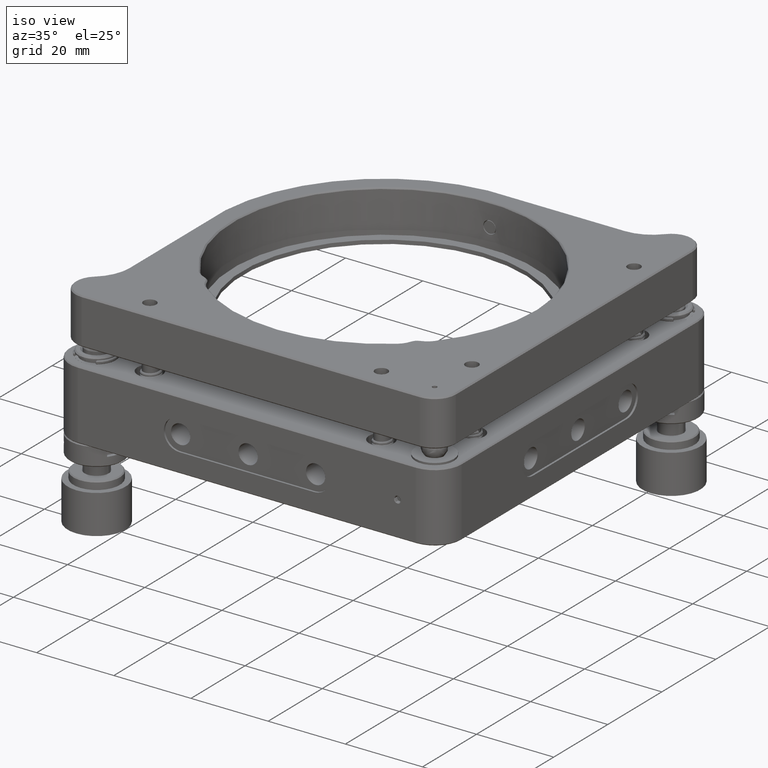
[diagram: clean part render]
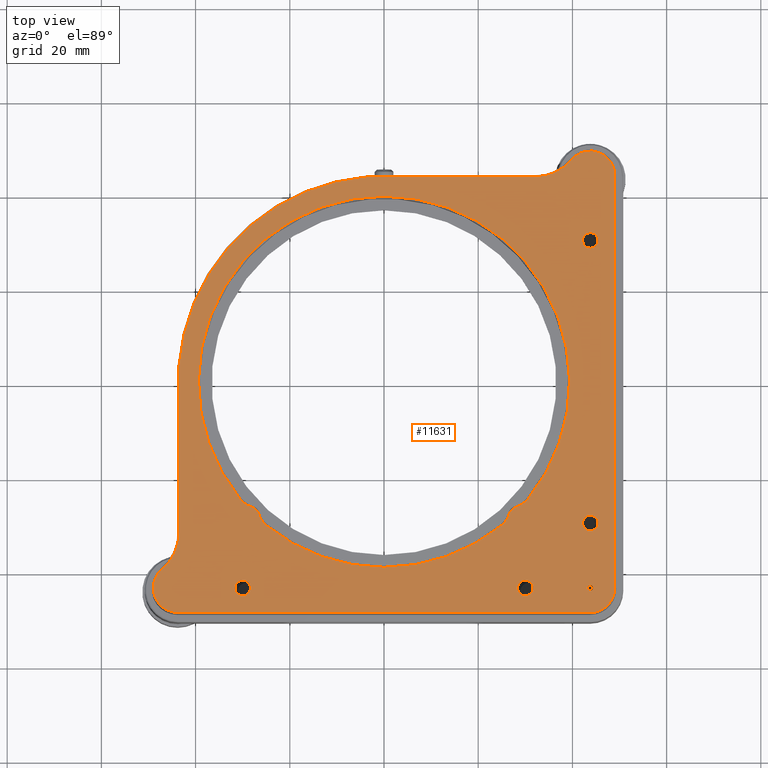
[diagram: tour spotlight — one face highlighted and labeled with its STEP entity id]
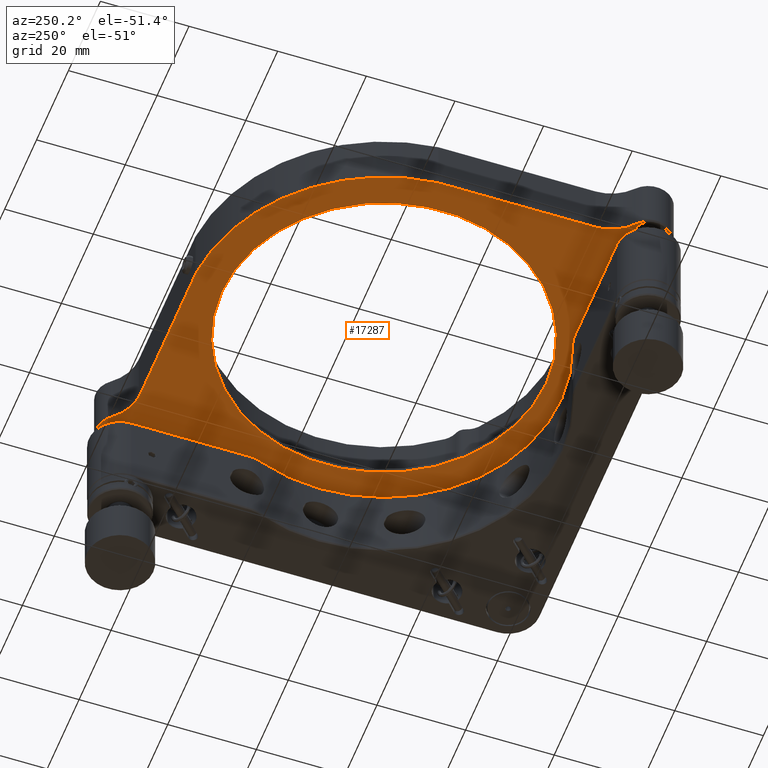
[diagram: tour spotlight — one face highlighted and labeled with its STEP entity id]
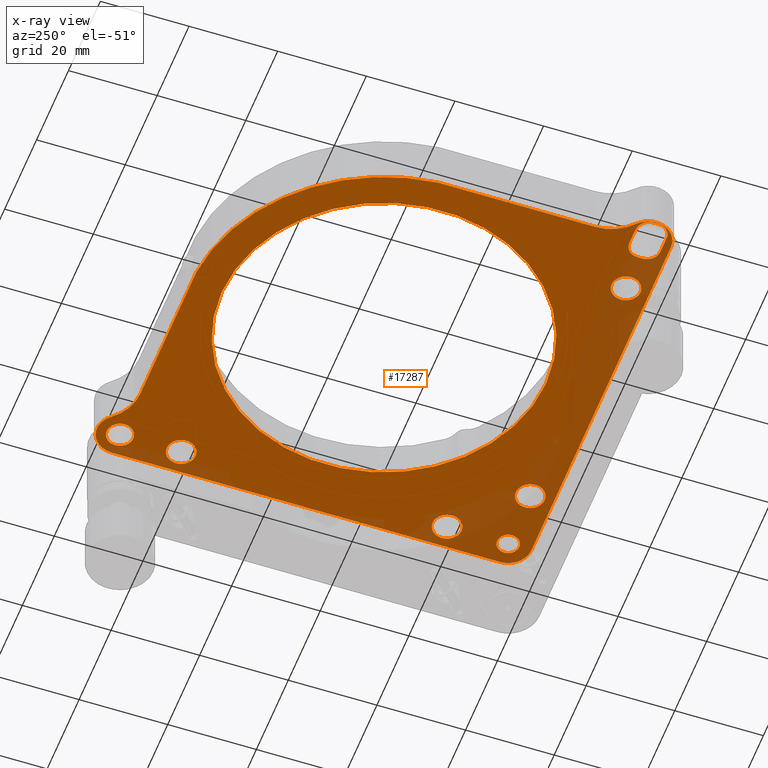
[diagram: x-ray of the same camera — body ghosted, this tour face saturated]
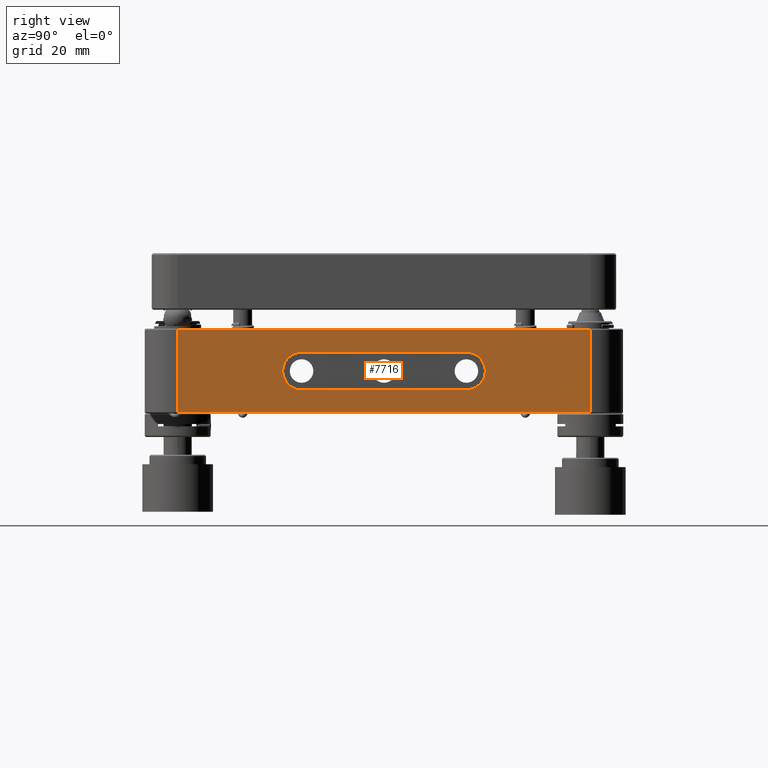
[diagram: tour spotlight — one face highlighted and labeled with its STEP entity id]
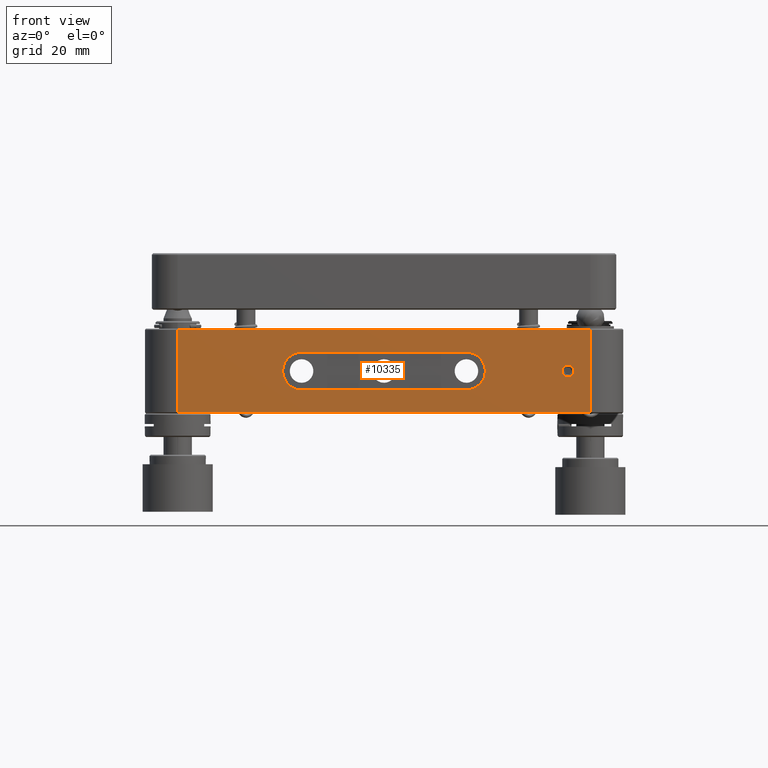
[diagram: tour spotlight — one face highlighted and labeled with its STEP entity id]
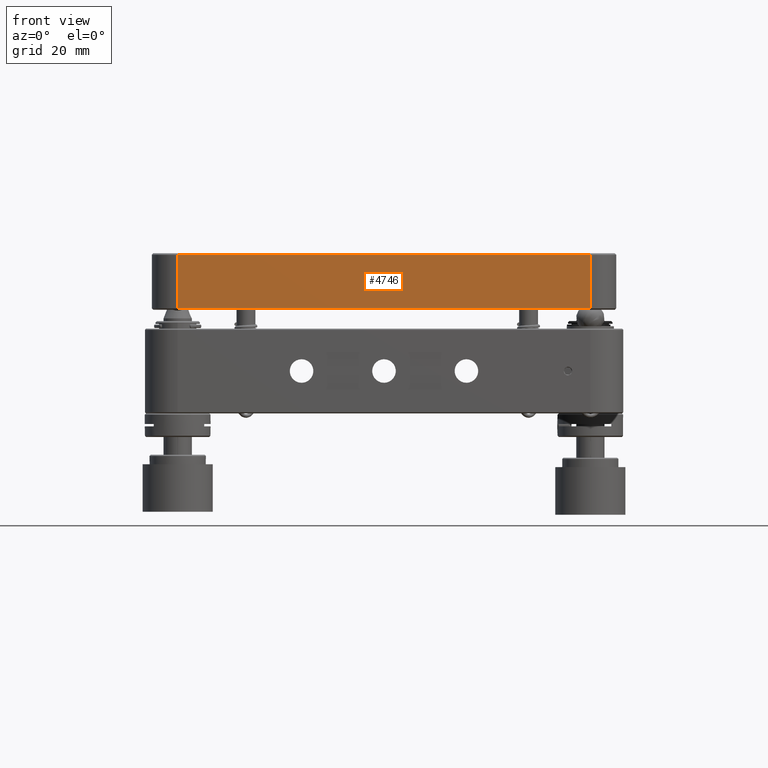
[diagram: tour spotlight — one face highlighted and labeled with its STEP entity id]
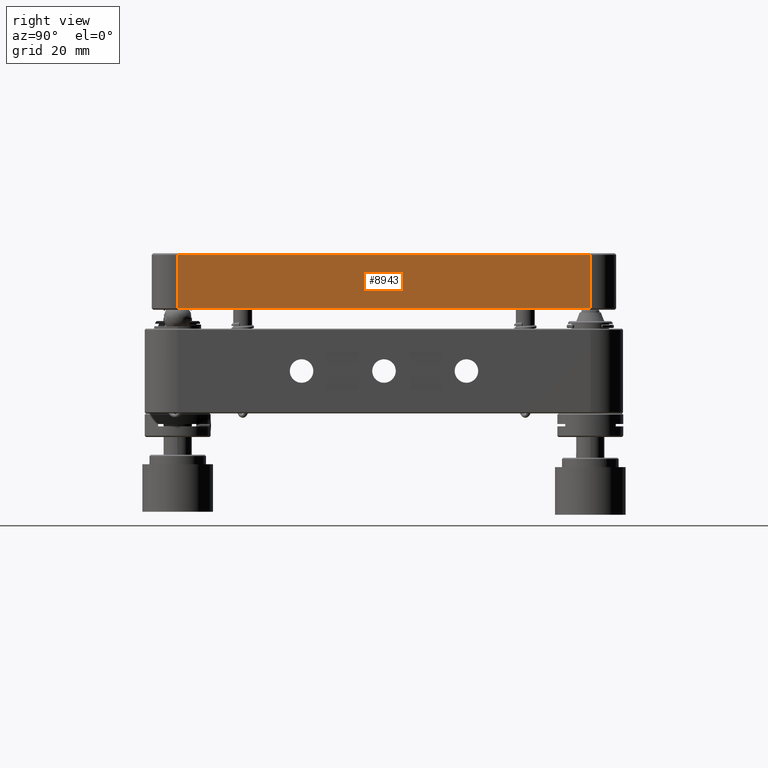
[diagram: tour spotlight — one face highlighted and labeled with its STEP entity id]
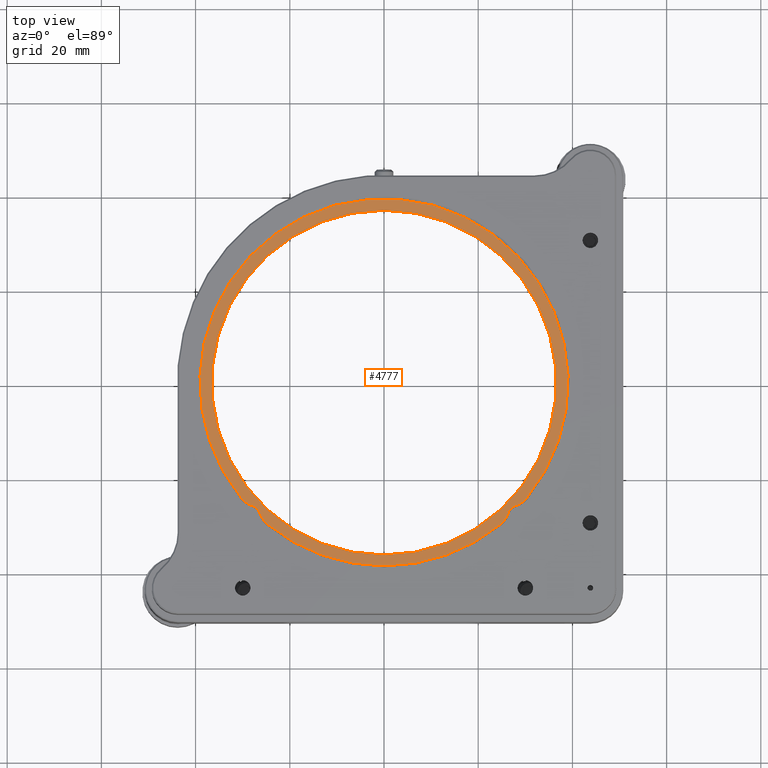
[diagram: tour spotlight — one face highlighted and labeled with its STEP entity id]
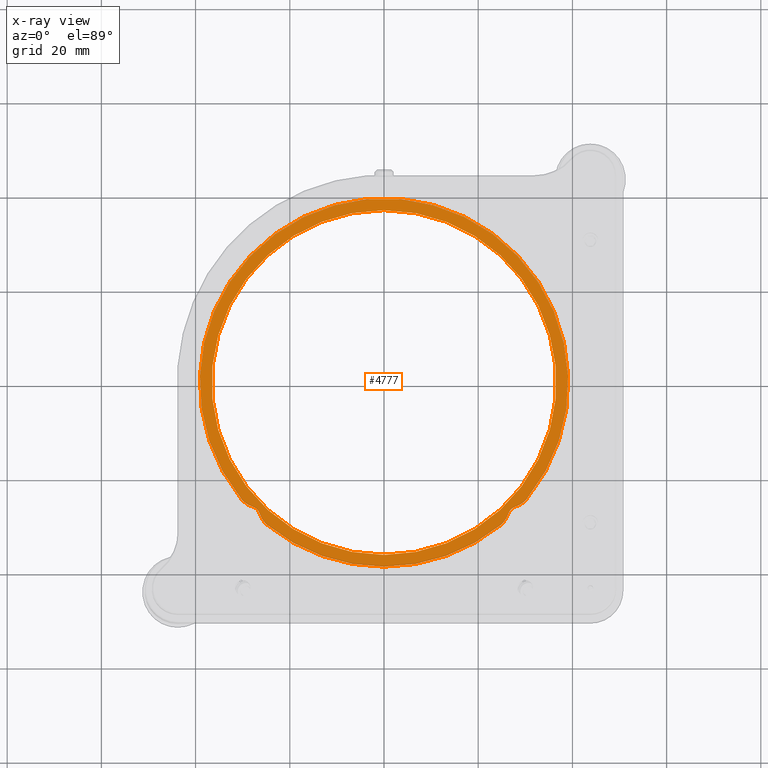
[diagram: x-ray of the same camera — body ghosted, this tour face saturated]
A machine part: a face-by-face anatomy tour. The part has 585 B-rep faces; the first image is the clean iso view, then the 7 largest visible faces are spotlighted one at a time (largest first), each with its STEP entity span.

Face 1 — top view, entity #11631. In plain terms, the highlighted planar face has unit normal (0, -0, 1).
Definition (entity closure, byte-faithful):
#17 = VERTEX_POINT ( 'NONE', #10179 ) ;
#32 = ORIENTED_EDGE ( 'NONE', *, *, #18183, .T. ) ;
#270 = VERTEX_POINT ( 'NONE', #17746 ) ;
#490 = DIRECTION ( 'NONE',  ( 6.736790197968189267E-16, -1.000000000000000000, 0.000000000000000000 ) ) ;
#535 = EDGE_LOOP ( 'NONE', ( #3178, #4653, #14730, #15207, #4571, #869, #16219, #18567, #7781, #6192 ) ) ;
#564 = AXIS2_PLACEMENT_3D ( 'NONE', #23280, #4988, #17814 ) ;
#828 = VECTOR ( 'NONE', #14062, 1000.000000000000000 ) ;
#847 = DIRECTION ( 'NONE',  ( -1.137208903880104210E-16, 1.216571513026822848E-16, -1.000000000000000000 ) ) ;
#864 = CARTESIAN_POINT ( 'NONE',  ( 28.03491086592222459, -26.61420246290524716, 24.99528137420356444 ) ) ;
#869 = ORIENTED_EDGE ( 'NONE', *, *, #16166, .T. ) ;
#1327 = CARTESIAN_POINT ( 'NONE',  ( 3.980980410103876592E-15, 4.159783168212274247E-14, 24.99528137423859775 ) ) ;
#1340 = DIRECTION ( 'NONE',  ( 0.000000000000000000, 1.000000000000000000, 0.000000000000000000 ) ) ;
#1475 = DIRECTION ( 'NONE',  ( 1.963837897365832866E-15, -1.000000000000000000, -6.546126324552776220E-16 ) ) ;
#1800 = EDGE_CURVE ( 'NONE', #19246, #4836, #15048, .T. ) ;
#1850 = CIRCLE ( 'NONE', #564, 1.649999999999991696 ) ;
#2431 = DIRECTION ( 'NONE',  ( -1.000000000000000000, 1.577021341696472879E-15, 0.000000000000000000 ) ) ;
#2433 = EDGE_CURVE ( 'NONE', #8241, #19246, #22124, .T. ) ;
#2649 = PLANE ( 'NONE',  #12668 ) ;
#2699 = CIRCLE ( 'NONE', #14652, 5.300000000005234746 ) ;
#2940 = CIRCLE ( 'NONE', #17878, 5.199999999945241314 ) ;
#3007 = AXIS2_PLACEMENT_3D ( 'NONE', #11293, #14776, #25301 ) ;
#3087 = EDGE_LOOP ( 'NONE', ( #18599 ) ) ;
#3127 = EDGE_CURVE ( 'NONE', #13986, #13986, #1850, .T. ) ;
#3178 = ORIENTED_EDGE ( 'NONE', *, *, #21753, .T. ) ;
#3299 = AXIS2_PLACEMENT_3D ( 'NONE', #7045, #23341, #7584 ) ;
#3303 = CARTESIAN_POINT ( 'NONE',  ( 48.99999999998725997, -43.79999999999997584, 24.99528137425133423 ) ) ;
#3341 = DIRECTION ( 'NONE',  ( -1.137208903880104210E-16, 1.216571513026822848E-16, -1.000000000000000000 ) ) ;
#3406 = DIRECTION ( 'NONE',  ( -1.137208903880104210E-16, 1.216571513026822848E-16, -1.000000000000000000 ) ) ;
#3744 = DIRECTION ( 'NONE',  ( -6.938893903568884949E-16, -0.000000000000000000, 1.000000000000000000 ) ) ;
#3985 = AXIS2_PLACEMENT_3D ( 'NONE', #16777, #14921, #490 ) ;
#4096 = CARTESIAN_POINT ( 'NONE',  ( 30.51719296394520597, -24.92109414931825739, 24.99528137421128804 ) ) ;
#4261 = DIRECTION ( 'NONE',  ( 0.000000000000000000, 1.000000000000000000, 0.000000000000000000 ) ) ;
#4571 = ORIENTED_EDGE ( 'NONE', *, *, #5935, .T. ) ;
#4653 = ORIENTED_EDGE ( 'NONE', *, *, #2433, .T. ) ;
#4663 = ORIENTED_EDGE ( 'NONE', *, *, #12736, .T. ) ;
#4836 = VERTEX_POINT ( 'NONE', #8999 ) ;
#4988 = DIRECTION ( 'NONE',  ( -1.137208903880104210E-16, 1.216571513026822848E-16, -1.000000000000000000 ) ) ;
#5121 = EDGE_LOOP ( 'NONE', ( #17114 ) ) ;
#5208 = DIRECTION ( 'NONE',  ( -0.000000000000000000, 6.546126324362008945E-16, -1.000000000000000000 ) ) ;
#5384 = VERTEX_POINT ( 'NONE', #5791 ) ;
#5408 = CARTESIAN_POINT ( 'NONE',  ( 43.80000000000001137, -29.99999999999992895, 24.99528137423860130 ) ) ;
#5526 = CIRCLE ( 'NONE', #12333, 5.199999999945248419 ) ;
#5791 = CARTESIAN_POINT ( 'NONE',  ( -29.99999999999999645, -42.14999999999996305, 24.99528137423860130 ) ) ;
#5900 = EDGE_CURVE ( 'NONE', #270, #24137, #17180, .T. ) ;
#5935 = EDGE_CURVE ( 'NONE', #22911, #20649, #9542, .T. ) ;
#6129 = CARTESIAN_POINT ( 'NONE',  ( 43.79999999999999005, -43.79999999999997584, 24.99528137426407781 ) ) ;
#6192 = ORIENTED_EDGE ( 'NONE', *, *, #5900, .T. ) ;
#6227 = EDGE_LOOP ( 'NONE', ( #9299, #19429, #12185, #23479, #15079, #8832, #32, #16299 ) ) ;
#6277 = DIRECTION ( 'NONE',  ( -1.137208903880104210E-16, 1.216571513026822848E-16, -1.000000000000000000 ) ) ;
#6291 = AXIS2_PLACEMENT_3D ( 'NONE', #21640, #3341, #1340 ) ;
#6396 = FACE_BOUND ( 'NONE', #6933, .T. ) ;
#6615 = LINE ( 'NONE', #24893, #10607 ) ;
#6703 = CARTESIAN_POINT ( 'NONE',  ( -28.70853531617388654, -28.70853531617372667, 24.99528137423112639 ) ) ;
#6842 = CARTESIAN_POINT ( 'NONE',  ( 43.80000000000001847, 43.80000000000003268, 24.99528137423112639 ) ) ;
#6850 = DIRECTION ( 'NONE',  ( 0.000000000000000000, 1.000000000000000000, 0.000000000000000000 ) ) ;
#6914 = DIRECTION ( 'NONE',  ( 1.000000000000000000, 6.546126324488699021E-16, 6.546126324488699021E-16 ) ) ;
#6933 = EDGE_LOOP ( 'NONE', ( #4663 ) ) ;
#7045 = CARTESIAN_POINT ( 'NONE',  ( 3.979564935899655060E-15, 4.163336342344337027E-14, 24.99528137423860130 ) ) ;
#7584 = DIRECTION ( 'NONE',  ( 0.000000000000000000, -1.000000000000000000, -8.805702923740123564E-17 ) ) ;
#7673 = CARTESIAN_POINT ( 'NONE',  ( -21.56876422569406770, -26.41208832668136708, 24.99528137422943175 ) ) ;
#7781 = ORIENTED_EDGE ( 'NONE', *, *, #9684, .T. ) ;
#7877 = CARTESIAN_POINT ( 'NONE',  ( 28.70853531617388299, -28.70853531617373733, 24.99528137422314700 ) ) ;
#8241 = VERTEX_POINT ( 'NONE', #25022 ) ;
#8249 = CIRCLE ( 'NONE', #11676, 5.299999999909324799 ) ;
#8490 = ORIENTED_EDGE ( 'NONE', *, *, #12409, .T. ) ;
#8524 = DIRECTION ( 'NONE',  ( 1.137208903880104210E-16, -1.216571513026822848E-16, 1.000000000000000000 ) ) ;
#8657 = FACE_BOUND ( 'NONE', #8920, .T. ) ;
#8832 = ORIENTED_EDGE ( 'NONE', *, *, #9099, .T. ) ;
#8920 = EDGE_LOOP ( 'NONE', ( #8490 ) ) ;
#8999 = CARTESIAN_POINT ( 'NONE',  ( -43.50000000000000000, 3.488012242629208171, 24.99528137423860130 ) ) ;
#9099 = EDGE_CURVE ( 'NONE', #16444, #14452, #9641, .T. ) ;
#9238 = VERTEX_POINT ( 'NONE', #21793 ) ;
#9299 = ORIENTED_EDGE ( 'NONE', *, *, #11803, .T. ) ;
#9542 = CIRCLE ( 'NONE', #3985, 10.29999999999999005 ) ;
#9598 = CARTESIAN_POINT ( 'NONE',  ( -3.488012242629023874, 43.50000000000005684, 24.99528137423860130 ) ) ;
#9641 = CIRCLE ( 'NONE', #23273, 2.200000000140374556 ) ;
#9684 = EDGE_CURVE ( 'NONE', #26175, #270, #15338, .T. ) ;
#10179 = CARTESIAN_POINT ( 'NONE',  ( 43.80000000000001137, -28.34999999999993747, 24.99528137423860130 ) ) ;
#10285 = CARTESIAN_POINT ( 'NONE',  ( 29.99999999999998934, -43.79999999999996874, 24.99528137423860130 ) ) ;
#10464 = CARTESIAN_POINT ( 'NONE',  ( 39.82695869235959663, 47.15483870969522684, 24.99528137423612151 ) ) ;
#10579 = EDGE_CURVE ( 'NONE', #5384, #5384, #20772, .T. ) ;
#10607 = VECTOR ( 'NONE', #16888, 1000.000000000000000 ) ;
#10688 = AXIS2_PLACEMENT_3D ( 'NONE', #19256, #13112, #21135 ) ;
#10772 = AXIS2_PLACEMENT_3D ( 'NONE', #1327, #16007, #19890 ) ;
#11293 = CARTESIAN_POINT ( 'NONE',  ( -26.41208832668149853, -21.56876422569391494, 24.99528137418348805 ) ) ;
#11550 = DIRECTION ( 'NONE',  ( 0.000000000000000000, 1.000000000000000000, 0.000000000000000000 ) ) ;
#11620 = CARTESIAN_POINT ( 'NONE',  ( 21.56876422569406415, -26.41208832668137418, 24.99528137407666861 ) ) ;
#11631 = ADVANCED_FACE ( 'NONE', ( #6396, #13057, #20955, #8657, #14539, #20692, #18820 ), #2649, .T. ) ;
#11658 = CARTESIAN_POINT ( 'NONE',  ( -28.03491086586847558, -26.61420246278778379, 24.99528137420032081 ) ) ;
#11676 = AXIS2_PLACEMENT_3D ( 'NONE', #11620, #5208, #1475 ) ;
#11687 = DIRECTION ( 'NONE',  ( -0.000000000000000000, -0.000000000000000000, -1.000000000000000000 ) ) ;
#11707 = CARTESIAN_POINT ( 'NONE',  ( 3.979564935899655060E-15, 43.50000000000004974, 24.99528137423861196 ) ) ;
#11803 = EDGE_CURVE ( 'NONE', #17964, #23791, #15250, .T. ) ;
#11948 = EDGE_CURVE ( 'NONE', #22561, #17964, #13545, .T. ) ;
#12057 = LINE ( 'NONE', #18199, #828 ) ;
#12150 = CARTESIAN_POINT ( 'NONE',  ( -26.61420246290741076, -28.03491086589019687, 24.99528137420245955 ) ) ;
#12185 = ORIENTED_EDGE ( 'NONE', *, *, #24379, .T. ) ;
#12260 = DIRECTION ( 'NONE',  ( -1.000000000000000000, 1.334402673842365023E-15, 0.000000000000000000 ) ) ;
#12333 = AXIS2_PLACEMENT_3D ( 'NONE', #15105, #12962, #20986 ) ;
#12409 = EDGE_CURVE ( 'NONE', #17799, #17799, #17816, .T. ) ;
#12527 = AXIS2_PLACEMENT_3D ( 'NONE', #7877, #3744, #20032 ) ;
#12668 = AXIS2_PLACEMENT_3D ( 'NONE', #16669, #8524, #12929 ) ;
#12715 = DIRECTION ( 'NONE',  ( -1.000000000000000000, 1.334402673807042592E-15, 0.000000000000000000 ) ) ;
#12736 = EDGE_CURVE ( 'NONE', #17, #17, #19098, .T. ) ;
#12929 = DIRECTION ( 'NONE',  ( 0.000000000000000000, -1.000000000000000000, -1.216571513026822848E-16 ) ) ;
#12962 = DIRECTION ( 'NONE',  ( -0.000000000000000000, -0.000000000000000000, 1.000000000000000000 ) ) ;
#13057 = FACE_BOUND ( 'NONE', #5121, .T. ) ;
#13112 = DIRECTION ( 'NONE',  ( -1.684197549492047317E-16, -5.673042771430031037E-32, -1.000000000000000000 ) ) ;
#13509 = AXIS2_PLACEMENT_3D ( 'NONE', #23410, #847, #6850 ) ;
#13545 = CIRCLE ( 'NONE', #3299, 39.40000000000006253 ) ;
#13695 = AXIS2_PLACEMENT_3D ( 'NONE', #10285, #6277, #4261 ) ;
#13986 = VERTEX_POINT ( 'NONE', #20384 ) ;
#14062 = DIRECTION ( 'NONE',  ( 0.000000000000000000, -1.000000000000000000, -1.216571513026822848E-16 ) ) ;
#14085 = CIRCLE ( 'NONE', #25569, 39.40000000000007674 ) ;
#14254 = EDGE_CURVE ( 'NONE', #15640, #9238, #6615, .T. ) ;
#14278 = DIRECTION ( 'NONE',  ( -0.000000000000000000, -0.000000000000000000, 1.000000000000000000 ) ) ;
#14452 = VERTEX_POINT ( 'NONE', #11658 ) ;
#14539 = FACE_BOUND ( 'NONE', #3087, .T. ) ;
#14582 = VERTEX_POINT ( 'NONE', #20327 ) ;
#14652 = AXIS2_PLACEMENT_3D ( 'NONE', #7673, #11687, #26350 ) ;
#14730 = ORIENTED_EDGE ( 'NONE', *, *, #1800, .T. ) ;
#14776 = DIRECTION ( 'NONE',  ( -0.000000000000000000, 6.546126324430477142E-16, -1.000000000000000000 ) ) ;
#14921 = DIRECTION ( 'NONE',  ( -0.000000000000000000, 1.684197549492045591E-16, -1.000000000000000000 ) ) ;
#15048 = CIRCLE ( 'NONE', #10772, 43.63961765878261900 ) ;
#15079 = ORIENTED_EDGE ( 'NONE', *, *, #24021, .T. ) ;
#15105 = CARTESIAN_POINT ( 'NONE',  ( -43.80000000000000426, -43.79999999999994742, 24.99528137426409913 ) ) ;
#15178 = CARTESIAN_POINT ( 'NONE',  ( 26.61420246287697111, -28.03491086589367143, 24.99528137414990780 ) ) ;
#15207 = ORIENTED_EDGE ( 'NONE', *, *, #15537, .T. ) ;
#15211 = CARTESIAN_POINT ( 'NONE',  ( 49.00000000000000000, 4.165728705380878162E-14, 24.99528137423860130 ) ) ;
#15250 = CIRCLE ( 'NONE', #23348, 5.299999999961204189 ) ;
#15338 = LINE ( 'NONE', #15211, #16883 ) ;
#15339 = EDGE_CURVE ( 'NONE', #9238, #26175, #2940, .T. ) ;
#15348 = CARTESIAN_POINT ( 'NONE',  ( -30.51719296398906778, -24.92109414935474732, 24.99528137420676543 ) ) ;
#15537 = EDGE_CURVE ( 'NONE', #4836, #22911, #12057, .T. ) ;
#15640 = VERTEX_POINT ( 'NONE', #17668 ) ;
#15822 = ORIENTED_EDGE ( 'NONE', *, *, #18968, .T. ) ;
#16007 = DIRECTION ( 'NONE',  ( 1.184391377354239904E-16, -1.184391377354239904E-16, 1.000000000000000000 ) ) ;
#16166 = EDGE_CURVE ( 'NONE', #20649, #15640, #5526, .T. ) ;
#16219 = ORIENTED_EDGE ( 'NONE', *, *, #14254, .T. ) ;
#16299 = ORIENTED_EDGE ( 'NONE', *, *, #11948, .T. ) ;
#16344 = EDGE_CURVE ( 'NONE', #14582, #17019, #14085, .T. ) ;
#16444 = VERTEX_POINT ( 'NONE', #12150 ) ;
#16669 = CARTESIAN_POINT ( 'NONE',  ( 3.979564935899655060E-15, 4.165728705380878162E-14, 24.99528137423860485 ) ) ;
#16777 = CARTESIAN_POINT ( 'NONE',  ( -53.79999999999999716, -31.95728071767294054, 24.99528137423860485 ) ) ;
#16883 = VECTOR ( 'NONE', #23483, 1000.000000000000000 ) ;
#16888 = DIRECTION ( 'NONE',  ( 1.000000000000000000, 1.383495956820993113E-32, -1.137208903880104210E-16 ) ) ;
#16955 = CARTESIAN_POINT ( 'NONE',  ( 29.99999999999998934, -42.14999999999997726, 24.99528137423860130 ) ) ;
#17019 = VERTEX_POINT ( 'NONE', #20624 ) ;
#17056 = CARTESIAN_POINT ( 'NONE',  ( 26.41208832668149498, -21.56876422569392204, 24.99528137418398188 ) ) ;
#17114 = ORIENTED_EDGE ( 'NONE', *, *, #10579, .T. ) ;
#17180 = CIRCLE ( 'NONE', #21468, 5.200000000082888540 ) ;
#17432 = DIRECTION ( 'NONE',  ( -1.000000000000000000, -1.383495956820993113E-32, 1.137208903880104210E-16 ) ) ;
#17668 = CARTESIAN_POINT ( 'NONE',  ( -43.80000000000000426, -48.99999999998721023, 24.99528137425135199 ) ) ;
#17746 = CARTESIAN_POINT ( 'NONE',  ( 49.00000000005790213, 43.80000000000003268, 24.99528137423112639 ) ) ;
#17799 = VERTEX_POINT ( 'NONE', #25933 ) ;
#17814 = DIRECTION ( 'NONE',  ( 0.000000000000000000, 1.000000000000000000, 0.000000000000000000 ) ) ;
#17816 = CIRCLE ( 'NONE', #6291, 0.6000000000000033085 ) ;
#17878 = AXIS2_PLACEMENT_3D ( 'NONE', #6129, #14278, #12260 ) ;
#17964 = VERTEX_POINT ( 'NONE', #4096 ) ;
#18183 = EDGE_CURVE ( 'NONE', #14452, #22561, #20914, .T. ) ;
#18199 = CARTESIAN_POINT ( 'NONE',  ( -43.50000000000000711, 4.165728705380878162E-14, 24.99528137423860841 ) ) ;
#18544 = CARTESIAN_POINT ( 'NONE',  ( -43.50000000000001421, -31.95728071767293343, 24.99528137423860485 ) ) ;
#18567 = ORIENTED_EDGE ( 'NONE', *, *, #15339, .T. ) ;
#18599 = ORIENTED_EDGE ( 'NONE', *, *, #3127, .T. ) ;
#18820 = FACE_BOUND ( 'NONE', #6227, .T. ) ;
#18968 = EDGE_CURVE ( 'NONE', #21241, #21241, #22632, .T. ) ;
#19098 = CIRCLE ( 'NONE', #21174, 1.649999999999991696 ) ;
#19123 = DIRECTION ( 'NONE',  ( -0.000000000000000000, -0.000000000000000000, 1.000000000000000000 ) ) ;
#19246 = VERTEX_POINT ( 'NONE', #9598 ) ;
#19256 = CARTESIAN_POINT ( 'NONE',  ( 31.95728071767302225, 53.80000000000003979, 24.99528137423860485 ) ) ;
#19429 = ORIENTED_EDGE ( 'NONE', *, *, #24503, .T. ) ;
#19890 = DIRECTION ( 'NONE',  ( -1.000000000000000000, 1.776356839400250465E-15, 7.950223072716074403E-17 ) ) ;
#20032 = DIRECTION ( 'NONE',  ( -1.000000000000000000, -1.577021341772254407E-15, 0.000000000000000000 ) ) ;
#20221 = CIRCLE ( 'NONE', #12527, 2.200000000034656900 ) ;
#20327 = CARTESIAN_POINT ( 'NONE',  ( 24.92109414929343103, -30.51719296392792913, 24.99528137415764206 ) ) ;
#20384 = CARTESIAN_POINT ( 'NONE',  ( 43.79999999999999716, 31.65000000000004476, 24.99528137423860130 ) ) ;
#20624 = CARTESIAN_POINT ( 'NONE',  ( -24.92109414933280220, -30.51719296396265335, 24.99528137423402185 ) ) ;
#20649 = VERTEX_POINT ( 'NONE', #25481 ) ;
#20692 = FACE_OUTER_BOUND ( 'NONE', #535, .T. ) ;
#20772 = CIRCLE ( 'NONE', #13509, 1.649999999999991696 ) ;
#20914 = CIRCLE ( 'NONE', #3007, 5.300000000017551116 ) ;
#20931 = CIRCLE ( 'NONE', #10688, 10.29999999999999005 ) ;
#20955 = FACE_BOUND ( 'NONE', #21156, .T. ) ;
#20986 = DIRECTION ( 'NONE',  ( -1.000000000000000000, -4.003208021527089743E-15, 0.000000000000000000 ) ) ;
#21135 = DIRECTION ( 'NONE',  ( 1.000000000000000000, 0.000000000000000000, 0.000000000000000000 ) ) ;
#21156 = EDGE_LOOP ( 'NONE', ( #15822 ) ) ;
#21174 = AXIS2_PLACEMENT_3D ( 'NONE', #5408, #3406, #11550 ) ;
#21241 = VERTEX_POINT ( 'NONE', #16955 ) ;
#21402 = VERTEX_POINT ( 'NONE', #15178 ) ;
#21468 = AXIS2_PLACEMENT_3D ( 'NONE', #6842, #22868, #12715 ) ;
#21640 = CARTESIAN_POINT ( 'NONE',  ( 43.79999999999998295, -43.79999999999997584, 24.99528137423859775 ) ) ;
#21753 = EDGE_CURVE ( 'NONE', #24137, #8241, #20931, .T. ) ;
#21793 = CARTESIAN_POINT ( 'NONE',  ( 43.79999999999998295, -48.99999999999556621, 24.99528137426367991 ) ) ;
#22124 = LINE ( 'NONE', #11707, #23159 ) ;
#22429 = CARTESIAN_POINT ( 'NONE',  ( 3.979564935899656638E-15, 4.163336342344337027E-14, 24.99528137423861196 ) ) ;
#22549 = DIRECTION ( 'NONE',  ( -8.805702923740118633E-17, 8.805702923740123564E-17, -1.000000000000000000 ) ) ;
#22561 = VERTEX_POINT ( 'NONE', #15348 ) ;
#22632 = CIRCLE ( 'NONE', #13695, 1.649999999999991696 ) ;
#22868 = DIRECTION ( 'NONE',  ( -0.000000000000000000, -0.000000000000000000, 1.000000000000000000 ) ) ;
#22911 = VERTEX_POINT ( 'NONE', #18544 ) ;
#23159 = VECTOR ( 'NONE', #17432, 1000.000000000000000 ) ;
#23273 = AXIS2_PLACEMENT_3D ( 'NONE', #6703, #19123, #2431 ) ;
#23280 = CARTESIAN_POINT ( 'NONE',  ( 43.79999999999999716, 30.00000000000005329, 24.99528137423860130 ) ) ;
#23341 = DIRECTION ( 'NONE',  ( -8.805702923740121098E-17, 1.320855438561018473E-16, -1.000000000000000000 ) ) ;
#23348 = AXIS2_PLACEMENT_3D ( 'NONE', #17056, #25199, #6914 ) ;
#23410 = CARTESIAN_POINT ( 'NONE',  ( -29.99999999999999645, -43.79999999999995453, 24.99528137423860130 ) ) ;
#23479 = ORIENTED_EDGE ( 'NONE', *, *, #16344, .T. ) ;
#23483 = DIRECTION ( 'NONE',  ( -0.000000000000000000, 1.000000000000000000, 1.216571513026822848E-16 ) ) ;
#23791 = VERTEX_POINT ( 'NONE', #864 ) ;
#24021 = EDGE_CURVE ( 'NONE', #17019, #16444, #2699, .T. ) ;
#24137 = VERTEX_POINT ( 'NONE', #10464 ) ;
#24379 = EDGE_CURVE ( 'NONE', #21402, #14582, #8249, .T. ) ;
#24503 = EDGE_CURVE ( 'NONE', #23791, #21402, #20221, .T. ) ;
#24802 = DIRECTION ( 'NONE',  ( 0.000000000000000000, -1.000000000000000000, -8.805702923740119866E-17 ) ) ;
#24893 = CARTESIAN_POINT ( 'NONE',  ( 3.979564935899655060E-15, -48.99999999999995737, 24.99528137423860130 ) ) ;
#25022 = CARTESIAN_POINT ( 'NONE',  ( 31.95728071767302225, 43.50000000000004974, 24.99528137423860485 ) ) ;
#25199 = DIRECTION ( 'NONE',  ( 3.273063162285442261E-16, -0.000000000000000000, -1.000000000000000000 ) ) ;
#25301 = DIRECTION ( 'NONE',  ( 0.000000000000000000, -1.000000000000000000, -6.546126324419103740E-16 ) ) ;
#25481 = CARTESIAN_POINT ( 'NONE',  ( -47.15483870965165636, -39.82695869237458197, 24.99528137421865281 ) ) ;
#25569 = AXIS2_PLACEMENT_3D ( 'NONE', #22429, #22549, #24802 ) ;
#25933 = CARTESIAN_POINT ( 'NONE',  ( 43.79999999999998295, -43.19999999999997442, 24.99528137423859775 ) ) ;
#26175 = VERTEX_POINT ( 'NONE', #3303 ) ;
#26350 = DIRECTION ( 'NONE',  ( 1.000000000000000000, 4.582288427104021451E-15, 0.000000000000000000 ) ) ;

Face 2 — auxiliary view, entity #17287. An x-ray twin of the same camera follows (body ghosted, this face saturated) — the face is partly hidden behind the body. In plain terms, the highlighted planar face has unit normal (0, -0, 1).
Definition (entity closure, byte-faithful):
#113 = DIRECTION ( 'NONE',  ( -1.000000000000000000, 0.000000000000000000, 0.000000000000000000 ) ) ;
#133 = AXIS2_PLACEMENT_3D ( 'NONE', #25718, #6099, #14249 ) ;
#369 = VERTEX_POINT ( 'NONE', #5822 ) ;
#960 = AXIS2_PLACEMENT_3D ( 'NONE', #22187, #1368, #17785 ) ;
#1047 = AXIS2_PLACEMENT_3D ( 'NONE', #6097, #9844, #14116 ) ;
#1113 = DIRECTION ( 'NONE',  ( -0.000000000000000000, 1.000000000000000000, 1.216571513026822848E-16 ) ) ;
#1138 = DIRECTION ( 'NONE',  ( -1.000000000000000000, 0.000000000000000000, 0.000000000000000000 ) ) ;
#1150 = EDGE_CURVE ( 'NONE', #18518, #18518, #24401, .T. ) ;
#1245 = DIRECTION ( 'NONE',  ( 1.000000000000000000, 1.383495956820993113E-32, -1.137208903880104210E-16 ) ) ;
#1257 = EDGE_CURVE ( 'NONE', #7764, #11445, #26097, .T. ) ;
#1368 = DIRECTION ( 'NONE',  ( 0.000000000000000000, -1.577021341841255035E-16, 1.000000000000000000 ) ) ;
#1819 = EDGE_CURVE ( 'NONE', #22216, #369, #5734, .T. ) ;
#1939 = CIRCLE ( 'NONE', #5344, 3.250000000000002665 ) ;
#2176 = AXIS2_PLACEMENT_3D ( 'NONE', #11032, #5162, #15578 ) ;
#2247 = VECTOR ( 'NONE', #22150, 1000.000000000000000 ) ;
#2319 = CIRCLE ( 'NONE', #1047, 3.000000000030679459 ) ;
#2382 = DIRECTION ( 'NONE',  ( 0.000000000000000000, 1.000000000000000000, 0.000000000000000000 ) ) ;
#2402 = EDGE_CURVE ( 'NONE', #20180, #20344, #22298, .T. ) ;
#2536 = CARTESIAN_POINT ( 'NONE',  ( -38.79999999999648708, -44.29999999999996163, 12.99528137420621476 ) ) ;
#2627 = CARTESIAN_POINT ( 'NONE',  ( -45.79999999999999716, -47.30000000001076899, 12.99528137428751506 ) ) ;
#2719 = AXIS2_PLACEMENT_3D ( 'NONE', #19433, #23701, #1138 ) ;
#2736 = VERTEX_POINT ( 'NONE', #12487 ) ;
#2841 = LINE ( 'NONE', #10858, #22339 ) ;
#2846 = CARTESIAN_POINT ( 'NONE',  ( 48.99999999999997158, 4.311717286944097170E-14, 12.99528137423859953 ) ) ;
#2982 = FACE_BOUND ( 'NONE', #16281, .T. ) ;
#3108 = CARTESIAN_POINT ( 'NONE',  ( 2.614914251243530106E-15, 43.50000000000002842, 12.99528137423861018 ) ) ;
#3342 = VERTEX_POINT ( 'NONE', #25757 ) ;
#3384 = FACE_BOUND ( 'NONE', #14616, .T. ) ;
#3656 = VERTEX_POINT ( 'NONE', #11921 ) ;
#3733 = CIRCLE ( 'NONE', #16498, 2.999999999964766850 ) ;
#3831 = AXIS2_PLACEMENT_3D ( 'NONE', #6492, #22397, #14257 ) ;
#3961 = CARTESIAN_POINT ( 'NONE',  ( 29.99999999999998934, -40.54999999999996874, 12.99528137423859597 ) ) ;
#4087 = ORIENTED_EDGE ( 'NONE', *, *, #22231, .F. ) ;
#4110 = CARTESIAN_POINT ( 'NONE',  ( -43.49999999999997868, 3.488012242629283222, 12.99528137423861729 ) ) ;
#4355 = EDGE_CURVE ( 'NONE', #14373, #6017, #23526, .T. ) ;
#4408 = ORIENTED_EDGE ( 'NONE', *, *, #6334, .F. ) ;
#4813 = ORIENTED_EDGE ( 'NONE', *, *, #1150, .F. ) ;
#4837 = ORIENTED_EDGE ( 'NONE', *, *, #4355, .F. ) ;
#4936 = DIRECTION ( 'NONE',  ( -1.137208903880104210E-16, 1.216571513026822848E-16, -1.000000000000000000 ) ) ;
#4957 = DIRECTION ( 'NONE',  ( 3.469446952068820421E-16, 0.000000000000000000, -1.000000000000000000 ) ) ;
#5001 = CIRCLE ( 'NONE', #19958, 3.000000000030679459 ) ;
#5109 = DIRECTION ( 'NONE',  ( 1.000000000000000000, 1.383495956820993113E-32, -1.137208903880104210E-16 ) ) ;
#5162 = DIRECTION ( 'NONE',  ( -1.137208903880104210E-16, 1.216571513026822848E-16, -1.000000000000000000 ) ) ;
#5233 = AXIS2_PLACEMENT_3D ( 'NONE', #23583, #19994, #25711 ) ;
#5242 = ORIENTED_EDGE ( 'NONE', *, *, #1819, .T. ) ;
#5344 = AXIS2_PLACEMENT_3D ( 'NONE', #17400, #13822, #17543 ) ;
#5381 = ORIENTED_EDGE ( 'NONE', *, *, #7905, .F. ) ;
#5491 = CARTESIAN_POINT ( 'NONE',  ( 43.79999999999998295, -43.79999999999997584, 12.99528137420677432 ) ) ;
#5573 = ORIENTED_EDGE ( 'NONE', *, *, #23173, .F. ) ;
#5614 = DIRECTION ( 'NONE',  ( 0.000000000000000000, 0.000000000000000000, -1.000000000000000000 ) ) ;
#5734 = LINE ( 'NONE', #26018, #2247 ) ;
#5777 = EDGE_CURVE ( 'NONE', #17861, #8463, #2841, .T. ) ;
#5822 = CARTESIAN_POINT ( 'NONE',  ( -48.80000000001080451, -44.29999999999996163, 12.99528137426305818 ) ) ;
#5873 = CARTESIAN_POINT ( 'NONE',  ( 2.614914251243530106E-15, -36.59999999999995879, 12.99528137423859953 ) ) ;
#6017 = VERTEX_POINT ( 'NONE', #2627 ) ;
#6024 = AXIS2_PLACEMENT_3D ( 'NONE', #8549, #4936, #23100 ) ;
#6097 = CARTESIAN_POINT ( 'NONE',  ( -45.79999999999999716, -43.29999999999996874, 12.99528137423067164 ) ) ;
#6099 = DIRECTION ( 'NONE',  ( 0.000000000000000000, 0.000000000000000000, 1.000000000000000000 ) ) ;
#6334 = EDGE_CURVE ( 'NONE', #20102, #7908, #17801, .T. ) ;
#6350 = VECTOR ( 'NONE', #13177, 1000.000000000000000 ) ;
#6414 = VECTOR ( 'NONE', #1113, 1000.000000000000000 ) ;
#6492 = CARTESIAN_POINT ( 'NONE',  ( -53.79999999999999716, -31.95728071767293343, 12.99528137423860841 ) ) ;
#6857 = CARTESIAN_POINT ( 'NONE',  ( -41.80000000000001137, -40.29999999996758220, 12.99528137420621476 ) ) ;
#7010 = ORIENTED_EDGE ( 'NONE', *, *, #25329, .F. ) ;
#7237 = LINE ( 'NONE', #19540, #24336 ) ;
#7625 = VERTEX_POINT ( 'NONE', #2536 ) ;
#7764 = VERTEX_POINT ( 'NONE', #10972 ) ;
#7843 = VECTOR ( 'NONE', #21544, 1000.000000000000000 ) ;
#7890 = CARTESIAN_POINT ( 'NONE',  ( -45.79999999999999716, -44.29999999999996163, 12.99528137428751506 ) ) ;
#7905 = EDGE_CURVE ( 'NONE', #20782, #20782, #17715, .T. ) ;
#7908 = VERTEX_POINT ( 'NONE', #25237 ) ;
#8014 = DIRECTION ( 'NONE',  ( 0.000000000000000000, 0.000000000000000000, -1.000000000000000000 ) ) ;
#8023 = VERTEX_POINT ( 'NONE', #17637 ) ;
#8366 = AXIS2_PLACEMENT_3D ( 'NONE', #12786, #21442, #23569 ) ;
#8463 = VERTEX_POINT ( 'NONE', #6857 ) ;
#8549 = CARTESIAN_POINT ( 'NONE',  ( 43.79999999999999005, -29.99999999999997158, 12.99528137423859597 ) ) ;
#8606 = EDGE_CURVE ( 'NONE', #2736, #2736, #1939, .T. ) ;
#8651 = DIRECTION ( 'NONE',  ( -1.137208903880104210E-16, 1.216571513026822848E-16, -1.000000000000000000 ) ) ;
#8988 = PLANE ( 'NONE',  #13239 ) ;
#9122 = EDGE_LOOP ( 'NONE', ( #15071 ) ) ;
#9184 = AXIS2_PLACEMENT_3D ( 'NONE', #5491, #4957, #9632 ) ;
#9528 = FACE_BOUND ( 'NONE', #23566, .T. ) ;
#9632 = DIRECTION ( 'NONE',  ( -1.000000000000000000, 0.000000000000000000, -6.938893903913539265E-16 ) ) ;
#9844 = DIRECTION ( 'NONE',  ( 0.000000000000000000, 0.000000000000000000, -1.000000000000000000 ) ) ;
#9984 = EDGE_CURVE ( 'NONE', #11445, #20102, #12197, .T. ) ;
#10105 = EDGE_CURVE ( 'NONE', #3656, #3656, #13045, .T. ) ;
#10187 = CARTESIAN_POINT ( 'NONE',  ( -43.80000000000000426, -48.99999999999390354, 12.99528137423256524 ) ) ;
#10588 = ORIENTED_EDGE ( 'NONE', *, *, #1257, .F. ) ;
#10858 = CARTESIAN_POINT ( 'NONE',  ( 2.614914251243530106E-15, -40.29999999999996874, 12.99528137423859953 ) ) ;
#10972 = CARTESIAN_POINT ( 'NONE',  ( 49.00000000009506351, 43.80000000000002558, 12.99528137435831354 ) ) ;
#10992 = FACE_OUTER_BOUND ( 'NONE', #11715, .T. ) ;
#11032 = CARTESIAN_POINT ( 'NONE',  ( 2.614914251243530106E-15, 4.311717286944097170E-14, 12.99528137423860485 ) ) ;
#11256 = DIRECTION ( 'NONE',  ( 0.000000000000000000, -1.000000000000000000, -1.216571513026822848E-16 ) ) ;
#11351 = VERTEX_POINT ( 'NONE', #17891 ) ;
#11445 = VERTEX_POINT ( 'NONE', #12155 ) ;
#11460 = EDGE_CURVE ( 'NONE', #6017, #369, #3733, .T. ) ;
#11715 = EDGE_LOOP ( 'NONE', ( #4408, #11911, #10588, #18469, #16449, #22373, #5573, #17915, #17202, #12600 ) ) ;
#11777 = CARTESIAN_POINT ( 'NONE',  ( 29.99999999999998934, -43.79999999999996874, 12.99528137423859597 ) ) ;
#11911 = ORIENTED_EDGE ( 'NONE', *, *, #9984, .F. ) ;
#11921 = CARTESIAN_POINT ( 'NONE',  ( 43.80000000000000426, 33.24999999999999289, 12.99528137423860308 ) ) ;
#12155 = CARTESIAN_POINT ( 'NONE',  ( 39.82695869233111807, 47.15483870971930003, 12.99528137430345787 ) ) ;
#12197 = CIRCLE ( 'NONE', #8366, 10.30000000000000426 ) ;
#12255 = DIRECTION ( 'NONE',  ( 9.869928144618666281E-17, -1.184391377354240151E-16, 1.000000000000000000 ) ) ;
#12425 = EDGE_CURVE ( 'NONE', #8463, #18353, #5001, .T. ) ;
#12440 = VERTEX_POINT ( 'NONE', #18413 ) ;
#12487 = CARTESIAN_POINT ( 'NONE',  ( -29.99999999999999645, -40.54999999999995453, 12.99528137423860308 ) ) ;
#12600 = ORIENTED_EDGE ( 'NONE', *, *, #20779, .F. ) ;
#12786 = CARTESIAN_POINT ( 'NONE',  ( 31.95728071767302225, 53.80000000000003979, 12.99528137423860841 ) ) ;
#12993 = CARTESIAN_POINT ( 'NONE',  ( 2.614914251243530106E-15, 4.311717286944097170E-14, 12.99528137423860485 ) ) ;
#13045 = CIRCLE ( 'NONE', #16069, 3.250000000000002665 ) ;
#13177 = DIRECTION ( 'NONE',  ( 0.000000000000000000, -1.000000000000000000, -1.216571513026822848E-16 ) ) ;
#13239 = AXIS2_PLACEMENT_3D ( 'NONE', #12993, #21147, #11256 ) ;
#13535 = FACE_BOUND ( 'NONE', #25640, .T. ) ;
#13822 = DIRECTION ( 'NONE',  ( -1.137208903880104210E-16, 1.216571513026822848E-16, -1.000000000000000000 ) ) ;
#13836 = ORIENTED_EDGE ( 'NONE', *, *, #22510, .F. ) ;
#13889 = DIRECTION ( 'NONE',  ( 0.000000000000000000, -1.000000000000000000, -1.192533460907411900E-16 ) ) ;
#13934 = EDGE_CURVE ( 'NONE', #8023, #12440, #24290, .T. ) ;
#14100 = CIRCLE ( 'NONE', #20064, 43.63961765878259058 ) ;
#14116 = DIRECTION ( 'NONE',  ( -1.000000000000000000, 0.000000000000000000, 0.000000000000000000 ) ) ;
#14249 = DIRECTION ( 'NONE',  ( 1.000000000000000000, 0.000000000000000000, 0.000000000000000000 ) ) ;
#14257 = DIRECTION ( 'NONE',  ( 0.000000000000000000, 1.000000000000000000, 1.684197549492045098E-16 ) ) ;
#14373 = VERTEX_POINT ( 'NONE', #22897 ) ;
#14616 = EDGE_LOOP ( 'NONE', ( #4813 ) ) ;
#14794 = LINE ( 'NONE', #17183, #6350 ) ;
#14847 = ORIENTED_EDGE ( 'NONE', *, *, #24919, .F. ) ;
#15071 = ORIENTED_EDGE ( 'NONE', *, *, #8606, .F. ) ;
#15252 = DIRECTION ( 'NONE',  ( -1.000000000000000000, -1.383495956820993113E-32, 1.137208903880104210E-16 ) ) ;
#15369 = EDGE_CURVE ( 'NONE', #21026, #8023, #14794, .T. ) ;
#15478 = DIRECTION ( 'NONE',  ( 0.000000000000000000, 0.000000000000000000, -1.000000000000000000 ) ) ;
#15578 = DIRECTION ( 'NONE',  ( 0.000000000000000000, -1.000000000000000000, -1.421904488505579408E-16 ) ) ;
#15663 = FACE_BOUND ( 'NONE', #24551, .T. ) ;
#16069 = AXIS2_PLACEMENT_3D ( 'NONE', #24801, #8651, #2382 ) ;
#16187 = ORIENTED_EDGE ( 'NONE', *, *, #10105, .F. ) ;
#16204 = CARTESIAN_POINT ( 'NONE',  ( -38.80000000000001137, -43.29999999999996874, 12.99528137423860308 ) ) ;
#16281 = EDGE_LOOP ( 'NONE', ( #16187 ) ) ;
#16449 = ORIENTED_EDGE ( 'NONE', *, *, #2402, .F. ) ;
#16498 = AXIS2_PLACEMENT_3D ( 'NONE', #7890, #8014, #20043 ) ;
#17171 = EDGE_CURVE ( 'NONE', #17442, #20180, #7237, .T. ) ;
#17173 = EDGE_CURVE ( 'NONE', #20344, #7764, #25263, .T. ) ;
#17183 = CARTESIAN_POINT ( 'NONE',  ( -43.49999999999997868, 4.311717286944097170E-14, 12.99528137423861018 ) ) ;
#17202 = ORIENTED_EDGE ( 'NONE', *, *, #15369, .F. ) ;
#17287 = ADVANCED_FACE ( 'NONE', ( #13535, #21683, #3384, #23408, #2982, #9528, #15663, #10992, #25529 ), #8988, .F. ) ;
#17400 = CARTESIAN_POINT ( 'NONE',  ( -29.99999999999999645, -43.79999999999995453, 12.99528137423860308 ) ) ;
#17442 = VERTEX_POINT ( 'NONE', #10187 ) ;
#17517 = VECTOR ( 'NONE', #22601, 1000.000000000000000 ) ;
#17543 = DIRECTION ( 'NONE',  ( 0.000000000000000000, 1.000000000000000000, 0.000000000000000000 ) ) ;
#17637 = CARTESIAN_POINT ( 'NONE',  ( -43.49999999999998579, -31.95728071767293343, 12.99528137423860841 ) ) ;
#17715 = CIRCLE ( 'NONE', #9184, 2.499999999997726263 ) ;
#17759 = CARTESIAN_POINT ( 'NONE',  ( -41.80000000000000426, -43.29999999999996874, 12.99528137417382823 ) ) ;
#17785 = DIRECTION ( 'NONE',  ( 0.000000000000000000, -1.000000000000000000, 0.000000000000000000 ) ) ;
#17801 = LINE ( 'NONE', #3108, #7843 ) ;
#17861 = VERTEX_POINT ( 'NONE', #20271 ) ;
#17891 = CARTESIAN_POINT ( 'NONE',  ( 43.79999999999999005, -26.74999999999996803, 12.99528137423859597 ) ) ;
#17912 = DIRECTION ( 'NONE',  ( 0.000000000000000000, 1.000000000000000000, 0.000000000000000000 ) ) ;
#17915 = ORIENTED_EDGE ( 'NONE', *, *, #13934, .F. ) ;
#18353 = VERTEX_POINT ( 'NONE', #19571 ) ;
#18400 = CIRCLE ( 'NONE', #6024, 3.250000000000002665 ) ;
#18413 = CARTESIAN_POINT ( 'NONE',  ( -47.15483870972036584, -39.82695869234063935, 12.99528137422855600 ) ) ;
#18469 = ORIENTED_EDGE ( 'NONE', *, *, #17173, .F. ) ;
#18518 = VERTEX_POINT ( 'NONE', #3961 ) ;
#18812 = CIRCLE ( 'NONE', #23492, 3.000000000042746251 ) ;
#18894 = CIRCLE ( 'NONE', #133, 5.200000000021819169 ) ;
#18928 = CIRCLE ( 'NONE', #2719, 3.000000000007038814 ) ;
#19276 = AXIS2_PLACEMENT_3D ( 'NONE', #11777, #19923, #17912 ) ;
#19433 = CARTESIAN_POINT ( 'NONE',  ( -41.80000000000000426, -44.29999999999996163, 12.99528137417382823 ) ) ;
#19525 = CARTESIAN_POINT ( 'NONE',  ( 2.614914251243530106E-15, -47.29999999999996874, 12.99528137423859953 ) ) ;
#19540 = CARTESIAN_POINT ( 'NONE',  ( 2.614914251243530106E-15, -48.99999999999993605, 12.99528137423859953 ) ) ;
#19571 = CARTESIAN_POINT ( 'NONE',  ( -38.79999999998466365, -43.29999999999996874, 12.99528137420621476 ) ) ;
#19923 = DIRECTION ( 'NONE',  ( -1.137208903880104210E-16, 1.216571513026822848E-16, -1.000000000000000000 ) ) ;
#19958 = AXIS2_PLACEMENT_3D ( 'NONE', #17759, #5614, #113 ) ;
#19994 = DIRECTION ( 'NONE',  ( 0.000000000000000000, 0.000000000000000000, 1.000000000000000000 ) ) ;
#20043 = DIRECTION ( 'NONE',  ( -1.000000000000000000, 0.000000000000000000, 0.000000000000000000 ) ) ;
#20064 = AXIS2_PLACEMENT_3D ( 'NONE', #20284, #12255, #13889 ) ;
#20102 = VERTEX_POINT ( 'NONE', #23391 ) ;
#20131 = ORIENTED_EDGE ( 'NONE', *, *, #11460, .F. ) ;
#20180 = VERTEX_POINT ( 'NONE', #26314 ) ;
#20271 = CARTESIAN_POINT ( 'NONE',  ( -45.79999999999999716, -40.29999999999600391, 12.99528137423463647 ) ) ;
#20284 = CARTESIAN_POINT ( 'NONE',  ( 2.619420733926077244E-15, 4.513834211671760594E-14, 12.99528137423861018 ) ) ;
#20344 = VERTEX_POINT ( 'NONE', #24193 ) ;
#20636 = ORIENTED_EDGE ( 'NONE', *, *, #5777, .F. ) ;
#20779 = EDGE_CURVE ( 'NONE', #7908, #21026, #14100, .T. ) ;
#20782 = VERTEX_POINT ( 'NONE', #23534 ) ;
#21026 = VERTEX_POINT ( 'NONE', #4110 ) ;
#21147 = DIRECTION ( 'NONE',  ( 1.137208903880104210E-16, -1.216571513026822848E-16, 1.000000000000000000 ) ) ;
#21222 = ORIENTED_EDGE ( 'NONE', *, *, #21552, .T. ) ;
#21371 = EDGE_CURVE ( 'NONE', #25896, #25896, #21795, .T. ) ;
#21442 = DIRECTION ( 'NONE',  ( -5.673042771430012426E-32, 1.684197549492044112E-16, -1.000000000000000000 ) ) ;
#21544 = DIRECTION ( 'NONE',  ( -1.000000000000000000, -1.383495956820993113E-32, 1.137208903880104210E-16 ) ) ;
#21552 = EDGE_CURVE ( 'NONE', #7625, #18353, #21860, .T. ) ;
#21683 = FACE_BOUND ( 'NONE', #9122, .T. ) ;
#21795 = CIRCLE ( 'NONE', #2176, 36.60000000000000142 ) ;
#21860 = LINE ( 'NONE', #16204, #17517 ) ;
#22150 = DIRECTION ( 'NONE',  ( -2.243815119554527150E-17, -1.000000000000000000, 2.243815119554535470E-17 ) ) ;
#22187 = CARTESIAN_POINT ( 'NONE',  ( 43.80000000000001847, 43.80000000000002558, 12.99528137448199061 ) ) ;
#22216 = VERTEX_POINT ( 'NONE', #24965 ) ;
#22231 = EDGE_CURVE ( 'NONE', #11351, #11351, #18400, .T. ) ;
#22298 = CIRCLE ( 'NONE', #5233, 5.200000000025989166 ) ;
#22339 = VECTOR ( 'NONE', #5109, 1000.000000000000000 ) ;
#22373 = ORIENTED_EDGE ( 'NONE', *, *, #17171, .F. ) ;
#22397 = DIRECTION ( 'NONE',  ( 0.000000000000000000, 2.526296324238066291E-16, -1.000000000000000000 ) ) ;
#22510 = EDGE_CURVE ( 'NONE', #3342, #3342, #18812, .T. ) ;
#22601 = DIRECTION ( 'NONE',  ( 1.440953024982275748E-16, 1.000000000000000000, 1.440953024982280678E-16 ) ) ;
#22897 = CARTESIAN_POINT ( 'NONE',  ( -41.80000000000000426, -47.30000000003235527, 12.99528137420621476 ) ) ;
#23100 = DIRECTION ( 'NONE',  ( 0.000000000000000000, 1.000000000000000000, 0.000000000000000000 ) ) ;
#23173 = EDGE_CURVE ( 'NONE', #12440, #17442, #18894, .T. ) ;
#23195 = EDGE_LOOP ( 'NONE', ( #4087 ) ) ;
#23391 = CARTESIAN_POINT ( 'NONE',  ( 31.95728071767302225, 43.50000000000003553, 12.99528137423860663 ) ) ;
#23408 = FACE_BOUND ( 'NONE', #23195, .T. ) ;
#23461 = ORIENTED_EDGE ( 'NONE', *, *, #21371, .F. ) ;
#23492 = AXIS2_PLACEMENT_3D ( 'NONE', #23758, #15478, #25752 ) ;
#23526 = LINE ( 'NONE', #19525, #26116 ) ;
#23534 = CARTESIAN_POINT ( 'NONE',  ( 41.30000000000225668, -43.79999999999997584, 12.99528137420677254 ) ) ;
#23566 = EDGE_LOOP ( 'NONE', ( #7010, #5242, #20131, #4837, #14847, #21222, #25726, #20636 ) ) ;
#23569 = DIRECTION ( 'NONE',  ( 0.000000000000000000, 1.000000000000000000, 1.684197549492045098E-16 ) ) ;
#23583 = CARTESIAN_POINT ( 'NONE',  ( 43.79999999999998295, -43.79999999999997584, 12.99528137423067164 ) ) ;
#23701 = DIRECTION ( 'NONE',  ( 0.000000000000000000, 0.000000000000000000, -1.000000000000000000 ) ) ;
#23758 = CARTESIAN_POINT ( 'NONE',  ( 43.79999999999999005, 43.80000000000001137, 12.99528137425460450 ) ) ;
#24193 = CARTESIAN_POINT ( 'NONE',  ( 48.99999999999602096, -43.79999999999997584, 12.99528137423463114 ) ) ;
#24290 = CIRCLE ( 'NONE', #3831, 10.30000000000000426 ) ;
#24336 = VECTOR ( 'NONE', #1245, 1000.000000000000000 ) ;
#24401 = CIRCLE ( 'NONE', #19276, 3.250000000000002665 ) ;
#24475 = EDGE_LOOP ( 'NONE', ( #13836 ) ) ;
#24551 = EDGE_LOOP ( 'NONE', ( #5381 ) ) ;
#24801 = CARTESIAN_POINT ( 'NONE',  ( 43.80000000000000426, 29.99999999999999289, 12.99528137423860308 ) ) ;
#24919 = EDGE_CURVE ( 'NONE', #7625, #14373, #18928, .T. ) ;
#24965 = CARTESIAN_POINT ( 'NONE',  ( -48.80000000001534488, -43.29999999999997584, 12.99528137423463647 ) ) ;
#25237 = CARTESIAN_POINT ( 'NONE',  ( -3.488012242629058068, 43.50000000000002842, 12.99528137423860841 ) ) ;
#25263 = LINE ( 'NONE', #2846, #6414 ) ;
#25329 = EDGE_CURVE ( 'NONE', #22216, #17861, #2319, .T. ) ;
#25529 = FACE_BOUND ( 'NONE', #24475, .T. ) ;
#25640 = EDGE_LOOP ( 'NONE', ( #23461 ) ) ;
#25711 = DIRECTION ( 'NONE',  ( 1.000000000000000000, 0.000000000000000000, 0.000000000000000000 ) ) ;
#25718 = CARTESIAN_POINT ( 'NONE',  ( -43.80000000000000426, -43.79999999999994742, 12.99528137422652918 ) ) ;
#25726 = ORIENTED_EDGE ( 'NONE', *, *, #12425, .F. ) ;
#25752 = DIRECTION ( 'NONE',  ( -1.000000000000000000, 0.000000000000000000, 0.000000000000000000 ) ) ;
#25757 = CARTESIAN_POINT ( 'NONE',  ( 40.79999999995724380, 43.80000000000001137, 12.99528137425460450 ) ) ;
#25896 = VERTEX_POINT ( 'NONE', #5873 ) ;
#26018 = CARTESIAN_POINT ( 'NONE',  ( -48.80000000000000426, -43.29999999999996874, 12.99528137423860485 ) ) ;
#26097 = CIRCLE ( 'NONE', #960, 5.200000000115778676 ) ;
#26116 = VECTOR ( 'NONE', #15252, 1000.000000000000000 ) ;
#26314 = CARTESIAN_POINT ( 'NONE',  ( 43.79999999999999005, -48.99999999996607158, 12.99528137421844143 ) ) ;

Face 3 — right view, entity #7716. In plain terms, the highlighted planar face has unit normal (-1, -0, 0).
Definition (entity closure, byte-faithful):
#513 = LINE ( 'NONE', #16798, #4565 ) ;
#1118 = VERTEX_POINT ( 'NONE', #3639 ) ;
#2168 = LINE ( 'NONE', #8178, #17342 ) ;
#2946 = VERTEX_POINT ( 'NONE', #2991 ) ;
#2991 = CARTESIAN_POINT ( 'NONE',  ( 50.80000000000946869, 43.80000000000000426, -8.749999999990915711 ) ) ;
#3639 = CARTESIAN_POINT ( 'NONE',  ( 50.79999999999999005, 17.50000000000002487, -3.999999999999998224 ) ) ;
#4198 = LINE ( 'NONE', #12340, #13894 ) ;
#4478 = CARTESIAN_POINT ( 'NONE',  ( 50.79999999999999716, -17.49999999999998224, -3.999999999999993339 ) ) ;
#4565 = VECTOR ( 'NONE', #12532, 1000.000000000000000 ) ;
#4827 = DIRECTION ( 'NONE',  ( 6.829619984160658046E-17, -1.000000000000000000, 0.000000000000000000 ) ) ;
#6004 = VECTOR ( 'NONE', #20744, 1000.000000000000000 ) ;
#6305 = DIRECTION ( 'NONE',  ( 6.829619984160658046E-17, -1.000000000000000000, 0.000000000000000000 ) ) ;
#6541 = ORIENTED_EDGE ( 'NONE', *, *, #13415, .F. ) ;
#7000 = ORIENTED_EDGE ( 'NONE', *, *, #8187, .F. ) ;
#7223 = AXIS2_PLACEMENT_3D ( 'NONE', #23712, #11565, #26245 ) ;
#7539 = LINE ( 'NONE', #9551, #20382 ) ;
#7716 = ADVANCED_FACE ( 'NONE', ( #17373, #25379 ), #13237, .F. ) ;
#8178 = CARTESIAN_POINT ( 'NONE',  ( 50.79999999999999005, 50.80000000000000426, 3.999999999999994671 ) ) ;
#8187 = EDGE_CURVE ( 'NONE', #22636, #2946, #4198, .T. ) ;
#8831 = ORIENTED_EDGE ( 'NONE', *, *, #17150, .F. ) ;
#9016 = ORIENTED_EDGE ( 'NONE', *, *, #11642, .F. ) ;
#9382 = DIRECTION ( 'NONE',  ( 1.000000000000000000, 4.440892098500625176E-16, 0.000000000000000000 ) ) ;
#9551 = CARTESIAN_POINT ( 'NONE',  ( 50.79999999999999005, 50.80000000000000426, -3.999999999999993339 ) ) ;
#10884 = ORIENTED_EDGE ( 'NONE', *, *, #19584, .F. ) ;
#10905 = EDGE_CURVE ( 'NONE', #20004, #20217, #2168, .T. ) ;
#11099 = AXIS2_PLACEMENT_3D ( 'NONE', #14742, #9382, #21550 ) ;
#11565 = DIRECTION ( 'NONE',  ( 1.000000000000000000, 4.440892098500625176E-16, 0.000000000000000000 ) ) ;
#11596 = DIRECTION ( 'NONE',  ( 0.000000000000000000, 0.000000000000000000, -1.000000000000000000 ) ) ;
#11642 = EDGE_CURVE ( 'NONE', #2946, #25417, #513, .T. ) ;
#12340 = CARTESIAN_POINT ( 'NONE',  ( 50.79999999999998295, 43.80000000000000426, 9.000000000000001776 ) ) ;
#12532 = DIRECTION ( 'NONE',  ( 6.829619984160658046E-17, -1.000000000000000000, 0.000000000000000000 ) ) ;
#12566 = LINE ( 'NONE', #20461, #20834 ) ;
#12586 = LINE ( 'NONE', #17852, #6004 ) ;
#12740 = EDGE_CURVE ( 'NONE', #25520, #1118, #7539, .T. ) ;
#13204 = CIRCLE ( 'NONE', #7223, 4.000000000000000000 ) ;
#13237 = PLANE ( 'NONE',  #25358 ) ;
#13415 = EDGE_CURVE ( 'NONE', #13990, #22636, #12566, .T. ) ;
#13894 = VECTOR ( 'NONE', #11596, 1000.000000000000000 ) ;
#13985 = CARTESIAN_POINT ( 'NONE',  ( 50.80000000000947580, -43.79999999999999716, -8.749999999990915711 ) ) ;
#13990 = VERTEX_POINT ( 'NONE', #24520 ) ;
#14300 = EDGE_LOOP ( 'NONE', ( #6541, #16915, #9016, #7000 ) ) ;
#14742 = CARTESIAN_POINT ( 'NONE',  ( 50.79999999999999716, -17.49999999999997868, 6.123233995736761352E-15 ) ) ;
#15785 = ORIENTED_EDGE ( 'NONE', *, *, #12740, .F. ) ;
#16798 = CARTESIAN_POINT ( 'NONE',  ( 50.79999999999999005, 50.80000000000000426, -8.750000000000014211 ) ) ;
#16915 = ORIENTED_EDGE ( 'NONE', *, *, #21564, .F. ) ;
#17145 = DIRECTION ( 'NONE',  ( -6.829619984160658046E-17, 1.000000000000000000, -0.000000000000000000 ) ) ;
#17150 = EDGE_CURVE ( 'NONE', #20217, #25520, #22606, .T. ) ;
#17342 = VECTOR ( 'NONE', #6305, 1000.000000000000000 ) ;
#17373 = FACE_BOUND ( 'NONE', #18860, .T. ) ;
#17509 = DIRECTION ( 'NONE',  ( -1.000000000000000000, -6.829619984160658046E-17, 0.000000000000000000 ) ) ;
#17852 = CARTESIAN_POINT ( 'NONE',  ( 50.79999999999999716, -43.79999999999999716, 9.000000000000001776 ) ) ;
#18860 = EDGE_LOOP ( 'NONE', ( #24735, #10884, #15785, #8831 ) ) ;
#19584 = EDGE_CURVE ( 'NONE', #1118, #20004, #13204, .T. ) ;
#19800 = CARTESIAN_POINT ( 'NONE',  ( 50.79999999999999005, 17.50000000000002132, 3.999999999999994671 ) ) ;
#20004 = VERTEX_POINT ( 'NONE', #19800 ) ;
#20191 = CARTESIAN_POINT ( 'NONE',  ( 50.79999999999999716, -17.49999999999997868, 4.000000000000000000 ) ) ;
#20217 = VERTEX_POINT ( 'NONE', #20191 ) ;
#20382 = VECTOR ( 'NONE', #17145, 1000.000000000000000 ) ;
#20461 = CARTESIAN_POINT ( 'NONE',  ( 50.80000000000000426, 3.452372901993213271E-15, 8.750000000000003553 ) ) ;
#20744 = DIRECTION ( 'NONE',  ( 0.000000000000000000, 0.000000000000000000, 1.000000000000000000 ) ) ;
#20834 = VECTOR ( 'NONE', #22844, 1000.000000000000000 ) ;
#21550 = DIRECTION ( 'NONE',  ( 0.000000000000000000, 1.000000000000000000, 0.000000000000000000 ) ) ;
#21564 = EDGE_CURVE ( 'NONE', #25417, #13990, #12586, .T. ) ;
#22157 = CARTESIAN_POINT ( 'NONE',  ( 50.80000000000249827, 43.80000000000000426, 8.749999999972715159 ) ) ;
#22606 = CIRCLE ( 'NONE', #11099, 4.000000000000000000 ) ;
#22636 = VERTEX_POINT ( 'NONE', #22157 ) ;
#22844 = DIRECTION ( 'NONE',  ( -3.414809992080376478E-17, 1.000000000000000000, -3.414809992080329023E-17 ) ) ;
#23650 = CARTESIAN_POINT ( 'NONE',  ( 50.79999999999999005, 50.80000000000000426, 9.000000000000001776 ) ) ;
#23712 = CARTESIAN_POINT ( 'NONE',  ( 50.79999999999999005, 17.50000000000002487, -4.592425496802578311E-15 ) ) ;
#24520 = CARTESIAN_POINT ( 'NONE',  ( 50.79999999999302673, -43.80000000000000426, 8.750000000005117684 ) ) ;
#24735 = ORIENTED_EDGE ( 'NONE', *, *, #10905, .F. ) ;
#25358 = AXIS2_PLACEMENT_3D ( 'NONE', #23650, #17509, #4827 ) ;
#25379 = FACE_OUTER_BOUND ( 'NONE', #14300, .T. ) ;
#25417 = VERTEX_POINT ( 'NONE', #13985 ) ;
#25520 = VERTEX_POINT ( 'NONE', #4478 ) ;
#26245 = DIRECTION ( 'NONE',  ( 0.000000000000000000, 1.000000000000000000, 0.000000000000000000 ) ) ;

Face 4 — front view, entity #10335. In plain terms, the highlighted planar face has unit normal (0, 1, 0).
Definition (entity closure, byte-faithful):
#93 = DIRECTION ( 'NONE',  ( 1.000000000000000000, 0.000000000000000000, 0.000000000000000000 ) ) ;
#155 = VERTEX_POINT ( 'NONE', #12178 ) ;
#283 = AXIS2_PLACEMENT_3D ( 'NONE', #14608, #2198, #18497 ) ;
#451 = VECTOR ( 'NONE', #25991, 1000.000000000000000 ) ;
#1263 = VECTOR ( 'NONE', #24457, 1000.000000000000000 ) ;
#1513 = DIRECTION ( 'NONE',  ( -1.000000000000000000, -0.000000000000000000, 0.000000000000000000 ) ) ;
#1570 = CARTESIAN_POINT ( 'NONE',  ( 17.50000000000000355, -50.79999999999999716, 4.000000000000005329 ) ) ;
#1925 = VECTOR ( 'NONE', #23821, 1000.000000000000000 ) ;
#2198 = DIRECTION ( 'NONE',  ( 0.000000000000000000, 1.000000000000000000, 0.000000000000000000 ) ) ;
#2218 = CARTESIAN_POINT ( 'NONE',  ( -43.79999999999999005, -50.79999999999999716, 9.000000000000001776 ) ) ;
#2823 = ORIENTED_EDGE ( 'NONE', *, *, #15945, .F. ) ;
#3502 = ORIENTED_EDGE ( 'NONE', *, *, #23510, .F. ) ;
#4161 = CARTESIAN_POINT ( 'NONE',  ( -50.79999999999999005, -50.79999999999999716, -8.750000000000014211 ) ) ;
#4210 = CARTESIAN_POINT ( 'NONE',  ( -17.50000000000000000, -50.79999999999999716, -4.592425496802578311E-15 ) ) ;
#4323 = PLANE ( 'NONE',  #283 ) ;
#4976 = CARTESIAN_POINT ( 'NONE',  ( 43.80000000000000426, -50.80000000000947580, -8.749999999990915711 ) ) ;
#5087 = ORIENTED_EDGE ( 'NONE', *, *, #11401, .F. ) ;
#5093 = CARTESIAN_POINT ( 'NONE',  ( -43.79999999999999005, -50.79999999999999716, -8.750000000000014211 ) ) ;
#5122 = VERTEX_POINT ( 'NONE', #5093 ) ;
#5418 = AXIS2_PLACEMENT_3D ( 'NONE', #10150, #20430, #20559 ) ;
#5844 = VERTEX_POINT ( 'NONE', #4976 ) ;
#6418 = VERTEX_POINT ( 'NONE', #19944 ) ;
#6465 = FACE_BOUND ( 'NONE', #8435, .T. ) ;
#7209 = ORIENTED_EDGE ( 'NONE', *, *, #7461, .F. ) ;
#7461 = EDGE_CURVE ( 'NONE', #6418, #20899, #13418, .T. ) ;
#7534 = CARTESIAN_POINT ( 'NONE',  ( -50.79999999999999005, -50.79999999999999716, -4.000000000000003553 ) ) ;
#7552 = ORIENTED_EDGE ( 'NONE', *, *, #12950, .T. ) ;
#8096 = VECTOR ( 'NONE', #1513, 1000.000000000000000 ) ;
#8200 = CARTESIAN_POINT ( 'NONE',  ( 39.05000000000001137, -50.79999999999999716, -1.224646799147350495E-16 ) ) ;
#8435 = EDGE_LOOP ( 'NONE', ( #7552 ) ) ;
#8436 = VERTEX_POINT ( 'NONE', #25142 ) ;
#9066 = ORIENTED_EDGE ( 'NONE', *, *, #23440, .F. ) ;
#9172 = ORIENTED_EDGE ( 'NONE', *, *, #19829, .F. ) ;
#9957 = VECTOR ( 'NONE', #24634, 1000.000000000000000 ) ;
#10004 = CARTESIAN_POINT ( 'NONE',  ( -43.80000000000000426, -50.80000000000949001, 8.749999999990905053 ) ) ;
#10150 = CARTESIAN_POINT ( 'NONE',  ( 17.50000000000000000, -50.79999999999999716, 6.123233995736761352E-15 ) ) ;
#10216 = FACE_BOUND ( 'NONE', #17507, .T. ) ;
#10335 = ADVANCED_FACE ( 'NONE', ( #16221, #6465, #10216 ), #4323, .F. ) ;
#10364 = LINE ( 'NONE', #2218, #9957 ) ;
#10543 = CIRCLE ( 'NONE', #5418, 3.999999999999999112 ) ;
#11401 = EDGE_CURVE ( 'NONE', #20899, #26226, #10543, .T. ) ;
#11641 = EDGE_LOOP ( 'NONE', ( #17371, #3502, #2823, #22513 ) ) ;
#11711 = LINE ( 'NONE', #13719, #451 ) ;
#11792 = CARTESIAN_POINT ( 'NONE',  ( -50.79999999999999005, -50.79999999999999716, 4.000000000000005329 ) ) ;
#12178 = CARTESIAN_POINT ( 'NONE',  ( 39.05000000000001137, -50.79999999999999716, -1.249999999999990896 ) ) ;
#12488 = DIRECTION ( 'NONE',  ( -0.000000000000000000, -1.000000000000000000, -0.000000000000000000 ) ) ;
#12950 = EDGE_CURVE ( 'NONE', #155, #155, #24576, .T. ) ;
#13070 = AXIS2_PLACEMENT_3D ( 'NONE', #8200, #14343, #16343 ) ;
#13176 = VERTEX_POINT ( 'NONE', #22873 ) ;
#13418 = LINE ( 'NONE', #7534, #1925 ) ;
#13719 = CARTESIAN_POINT ( 'NONE',  ( 43.79999999999999716, -50.79999999999999716, 9.000000000000001776 ) ) ;
#14058 = LINE ( 'NONE', #11792, #8096 ) ;
#14343 = DIRECTION ( 'NONE',  ( 0.000000000000000000, 1.000000000000000000, 0.000000000000000000 ) ) ;
#14608 = CARTESIAN_POINT ( 'NONE',  ( -50.79999999999999005, -50.79999999999999716, 9.000000000000001776 ) ) ;
#14707 = LINE ( 'NONE', #4161, #1263 ) ;
#15945 = EDGE_CURVE ( 'NONE', #5844, #5122, #14707, .T. ) ;
#16221 = FACE_OUTER_BOUND ( 'NONE', #11641, .T. ) ;
#16343 = DIRECTION ( 'NONE',  ( 0.000000000000000000, 0.000000000000000000, -1.000000000000000000 ) ) ;
#16508 = LINE ( 'NONE', #24395, #23437 ) ;
#17371 = ORIENTED_EDGE ( 'NONE', *, *, #17945, .F. ) ;
#17507 = EDGE_LOOP ( 'NONE', ( #5087, #7209, #9066, #9172 ) ) ;
#17945 = EDGE_CURVE ( 'NONE', #20810, #8436, #16508, .T. ) ;
#18477 = AXIS2_PLACEMENT_3D ( 'NONE', #4210, #12488, #23029 ) ;
#18497 = DIRECTION ( 'NONE',  ( 0.000000000000000000, -0.000000000000000000, 1.000000000000000000 ) ) ;
#19829 = EDGE_CURVE ( 'NONE', #26226, #13176, #14058, .T. ) ;
#19944 = CARTESIAN_POINT ( 'NONE',  ( -17.50000000000000000, -50.79999999999999716, -4.000000000000003553 ) ) ;
#20408 = CARTESIAN_POINT ( 'NONE',  ( 17.50000000000000000, -50.79999999999999716, -3.999999999999998224 ) ) ;
#20430 = DIRECTION ( 'NONE',  ( -0.000000000000000000, -1.000000000000000000, -0.000000000000000000 ) ) ;
#20559 = DIRECTION ( 'NONE',  ( 0.000000000000000000, 0.000000000000000000, -1.000000000000000000 ) ) ;
#20607 = CIRCLE ( 'NONE', #18477, 3.999999999999999112 ) ;
#20810 = VERTEX_POINT ( 'NONE', #10004 ) ;
#20899 = VERTEX_POINT ( 'NONE', #20408 ) ;
#21577 = EDGE_CURVE ( 'NONE', #8436, #5844, #11711, .T. ) ;
#22513 = ORIENTED_EDGE ( 'NONE', *, *, #21577, .F. ) ;
#22873 = CARTESIAN_POINT ( 'NONE',  ( -17.50000000000000000, -50.79999999999999716, 4.000000000000000000 ) ) ;
#23029 = DIRECTION ( 'NONE',  ( 0.000000000000000000, 0.000000000000000000, -1.000000000000000000 ) ) ;
#23437 = VECTOR ( 'NONE', #93, 1000.000000000000000 ) ;
#23440 = EDGE_CURVE ( 'NONE', #13176, #6418, #20607, .T. ) ;
#23510 = EDGE_CURVE ( 'NONE', #5122, #20810, #10364, .T. ) ;
#23821 = DIRECTION ( 'NONE',  ( 1.000000000000000000, 0.000000000000000000, -0.000000000000000000 ) ) ;
#24395 = CARTESIAN_POINT ( 'NONE',  ( 0.000000000000000000, -50.79999999999999716, 8.750000000000000000 ) ) ;
#24457 = DIRECTION ( 'NONE',  ( -1.000000000000000000, -0.000000000000000000, 0.000000000000000000 ) ) ;
#24576 = CIRCLE ( 'NONE', #13070, 1.249999999999990674 ) ;
#24634 = DIRECTION ( 'NONE',  ( 0.000000000000000000, -0.000000000000000000, 1.000000000000000000 ) ) ;
#25142 = CARTESIAN_POINT ( 'NONE',  ( 43.80000000000001137, -50.80000000000249827, 8.749999999972715159 ) ) ;
#25991 = DIRECTION ( 'NONE',  ( 0.000000000000000000, 0.000000000000000000, -1.000000000000000000 ) ) ;
#26226 = VERTEX_POINT ( 'NONE', #1570 ) ;

Face 5 — front view, entity #4746. In plain terms, the highlighted planar face has unit normal (0, 1, 0).
Definition (entity closure, byte-faithful):
#327 = DIRECTION ( 'NONE',  ( -1.000000000000000000, 3.072818087426015747E-16, 0.000000000000000000 ) ) ;
#3242 = ORIENTED_EDGE ( 'NONE', *, *, #22519, .F. ) ;
#4076 = FACE_OUTER_BOUND ( 'NONE', #9223, .T. ) ;
#4746 = ADVANCED_FACE ( 'NONE', ( #4076 ), #24376, .F. ) ;
#4783 = DIRECTION ( 'NONE',  ( 1.000000000000000000, -2.105013495652988365E-16, -2.105013495653086479E-16 ) ) ;
#5639 = VECTOR ( 'NONE', #19363, 1000.000000000000000 ) ;
#6434 = EDGE_CURVE ( 'NONE', #19341, #12199, #11386, .T. ) ;
#6847 = CARTESIAN_POINT ( 'NONE',  ( -43.80000000000000426, -49.30000000000183036, 13.29528137423200107 ) ) ;
#8788 = LINE ( 'NONE', #21215, #22902 ) ;
#8940 = CARTESIAN_POINT ( 'NONE',  ( -43.80000000000000426, -49.29999999999994742, 24.69528137423861480 ) ) ;
#9223 = EDGE_LOOP ( 'NONE', ( #18803, #3242, #14199, #12031 ) ) ;
#10611 = CARTESIAN_POINT ( 'NONE',  ( -49.30000000000000426, -49.29999999999994742, 12.99528137423860308 ) ) ;
#10767 = CARTESIAN_POINT ( 'NONE',  ( 43.79999999999999005, -49.30000000000600124, 13.29528137428274981 ) ) ;
#10805 = VECTOR ( 'NONE', #26228, 1000.000000000000000 ) ;
#11386 = LINE ( 'NONE', #19535, #26197 ) ;
#11477 = LINE ( 'NONE', #11750, #5639 ) ;
#11655 = EDGE_CURVE ( 'NONE', #17144, #12199, #8788, .T. ) ;
#11750 = CARTESIAN_POINT ( 'NONE',  ( -43.80000000000000426, -49.29999999999994742, 12.99528137423860308 ) ) ;
#12031 = ORIENTED_EDGE ( 'NONE', *, *, #6434, .F. ) ;
#12199 = VERTEX_POINT ( 'NONE', #10767 ) ;
#14199 = ORIENTED_EDGE ( 'NONE', *, *, #11655, .T. ) ;
#16084 = LINE ( 'NONE', #18219, #10805 ) ;
#17144 = VERTEX_POINT ( 'NONE', #6847 ) ;
#17933 = DIRECTION ( 'NONE',  ( -1.137208903880104210E-16, 1.216571513026822848E-16, -1.000000000000000000 ) ) ;
#18219 = CARTESIAN_POINT ( 'NONE',  ( -49.30000000000000426, -49.29999999999994742, 24.69528137423861480 ) ) ;
#18637 = DIRECTION ( 'NONE',  ( 3.072818087426015747E-16, 1.000000000000000000, 1.216571513026822355E-16 ) ) ;
#18803 = ORIENTED_EDGE ( 'NONE', *, *, #23995, .F. ) ;
#19341 = VERTEX_POINT ( 'NONE', #26273 ) ;
#19363 = DIRECTION ( 'NONE',  ( -3.738302949876054258E-32, -1.216571513026822355E-16, 1.000000000000000000 ) ) ;
#19535 = CARTESIAN_POINT ( 'NONE',  ( 43.79999999999998295, -49.29999999999997584, 12.99528137423859420 ) ) ;
#20462 = VERTEX_POINT ( 'NONE', #8940 ) ;
#21215 = CARTESIAN_POINT ( 'NONE',  ( -1.244189437714394794E-14, -49.29999999999995453, 13.29528137423858958 ) ) ;
#22519 = EDGE_CURVE ( 'NONE', #17144, #20462, #11477, .T. ) ;
#22902 = VECTOR ( 'NONE', #4783, 1000.000000000000000 ) ;
#23995 = EDGE_CURVE ( 'NONE', #20462, #19341, #16084, .T. ) ;
#24376 = PLANE ( 'NONE',  #26136 ) ;
#26136 = AXIS2_PLACEMENT_3D ( 'NONE', #10611, #18637, #327 ) ;
#26197 = VECTOR ( 'NONE', #17933, 1000.000000000000000 ) ;
#26228 = DIRECTION ( 'NONE',  ( 1.000000000000000000, -3.072818087426015747E-16, -0.000000000000000000 ) ) ;
#26273 = CARTESIAN_POINT ( 'NONE',  ( 43.79999999999998295, -49.29999999998991456, 24.69528137425556480 ) ) ;

Face 6 — right view, entity #8943. In plain terms, the highlighted planar face has unit normal (-1, 0, 0).
Definition (entity closure, byte-faithful):
#260 = CARTESIAN_POINT ( 'NONE',  ( 49.30000000000001847, 43.80000000000002558, 12.99528137423860485 ) ) ;
#872 = VERTEX_POINT ( 'NONE', #6828 ) ;
#1301 = ORIENTED_EDGE ( 'NONE', *, *, #15307, .F. ) ;
#1357 = CARTESIAN_POINT ( 'NONE',  ( 49.30000000000187299, -43.79999999999997584, 13.29528137424620837 ) ) ;
#2048 = CARTESIAN_POINT ( 'NONE',  ( 49.29999999999999005, -49.29999999999997584, 12.99528137423859242 ) ) ;
#2302 = ORIENTED_EDGE ( 'NONE', *, *, #12067, .F. ) ;
#2559 = DIRECTION ( 'NONE',  ( -3.072818087426015747E-16, -1.000000000000000000, 0.000000000000000000 ) ) ;
#4207 = VECTOR ( 'NONE', #18281, 1000.000000000000000 ) ;
#6828 = CARTESIAN_POINT ( 'NONE',  ( 49.29999999998993587, 43.80000000000002558, 24.69528137425557190 ) ) ;
#8012 = VERTEX_POINT ( 'NONE', #1357 ) ;
#8184 = DIRECTION ( 'NONE',  ( -1.000000000000000000, 3.072818087426015747E-16, 1.137208903880104703E-16 ) ) ;
#8943 = ADVANCED_FACE ( 'NONE', ( #22349 ), #12193, .F. ) ;
#10137 = CARTESIAN_POINT ( 'NONE',  ( 49.29999999999999005, -49.29999999999997584, 24.69528137423860414 ) ) ;
#11307 = EDGE_CURVE ( 'NONE', #8012, #22982, #25635, .T. ) ;
#12003 = VECTOR ( 'NONE', #16544, 1000.000000000000000 ) ;
#12067 = EDGE_CURVE ( 'NONE', #8012, #24233, #20013, .T. ) ;
#12143 = LINE ( 'NONE', #10137, #4207 ) ;
#12193 = PLANE ( 'NONE',  #16048 ) ;
#12366 = DIRECTION ( 'NONE',  ( 1.137208903880104703E-16, -3.494436089024698985E-32, 1.000000000000000000 ) ) ;
#12851 = CARTESIAN_POINT ( 'NONE',  ( 49.29999999999998295, -43.79999999999997584, 24.69528137423860414 ) ) ;
#13523 = VECTOR ( 'NONE', #16155, 1000.000000000000000 ) ;
#14290 = CARTESIAN_POINT ( 'NONE',  ( 49.29999999999999716, 2.806036424105349839E-14, 13.29528137423858425 ) ) ;
#14659 = CARTESIAN_POINT ( 'NONE',  ( 49.29999999996564952, 43.80000000000002558, 13.29528137422540013 ) ) ;
#15307 = EDGE_CURVE ( 'NONE', #24233, #872, #12143, .T. ) ;
#16048 = AXIS2_PLACEMENT_3D ( 'NONE', #2048, #8184, #2559 ) ;
#16155 = DIRECTION ( 'NONE',  ( 9.281232871995249589E-17, 1.000000000000000000, -9.281232871995680998E-17 ) ) ;
#16544 = DIRECTION ( 'NONE',  ( -1.137208903880104210E-16, 1.216571513026822848E-16, -1.000000000000000000 ) ) ;
#18232 = VECTOR ( 'NONE', #12366, 1000.000000000000000 ) ;
#18281 = DIRECTION ( 'NONE',  ( 3.072818087426015747E-16, 1.000000000000000000, -0.000000000000000000 ) ) ;
#18566 = LINE ( 'NONE', #260, #12003 ) ;
#18976 = EDGE_CURVE ( 'NONE', #872, #22982, #18566, .T. ) ;
#20013 = LINE ( 'NONE', #26008, #18232 ) ;
#20653 = EDGE_LOOP ( 'NONE', ( #1301, #2302, #24189, #25842 ) ) ;
#22349 = FACE_OUTER_BOUND ( 'NONE', #20653, .T. ) ;
#22982 = VERTEX_POINT ( 'NONE', #14659 ) ;
#24189 = ORIENTED_EDGE ( 'NONE', *, *, #11307, .T. ) ;
#24233 = VERTEX_POINT ( 'NONE', #12851 ) ;
#25635 = LINE ( 'NONE', #14290, #13523 ) ;
#25842 = ORIENTED_EDGE ( 'NONE', *, *, #18976, .F. ) ;
#26008 = CARTESIAN_POINT ( 'NONE',  ( 49.29999999999999005, -43.79999999999997584, 12.99528137423859242 ) ) ;

Face 7 — top view, entity #4777. An x-ray twin of the same camera follows (body ghosted, this face saturated) — the face is partly hidden behind the body. In plain terms, the highlighted planar face has unit normal (0, -0, 1).
Definition (entity closure, byte-faithful):
#607 = CIRCLE ( 'NONE', #15540, 2.499999999999995115 ) ;
#1140 = EDGE_CURVE ( 'NONE', #23520, #2456, #5206, .T. ) ;
#1630 = DIRECTION ( 'NONE',  ( -1.137208903880104210E-16, 1.216571513026822848E-16, -1.000000000000000000 ) ) ;
#2249 = DIRECTION ( 'NONE',  ( 0.000000000000000000, -1.000000000000000000, -1.330989879266092409E-16 ) ) ;
#2456 = VERTEX_POINT ( 'NONE', #23718 ) ;
#2721 = ORIENTED_EDGE ( 'NONE', *, *, #18336, .T. ) ;
#2997 = FACE_OUTER_BOUND ( 'NONE', #8163, .T. ) ;
#4777 = ADVANCED_FACE ( 'NONE', ( #23417, #2997 ), #18895, .T. ) ;
#4825 = AXIS2_PLACEMENT_3D ( 'NONE', #21157, #5127, #17401 ) ;
#5127 = DIRECTION ( 'NONE',  ( 1.137208903880104210E-16, -1.216571513026822848E-16, 1.000000000000000000 ) ) ;
#5206 = CIRCLE ( 'NONE', #17142, 2.500000000000002220 ) ;
#5607 = DIRECTION ( 'NONE',  ( -1.387778780781448437E-15, -1.000000000000000000, 0.000000000000000000 ) ) ;
#5883 = ORIENTED_EDGE ( 'NONE', *, *, #24515, .T. ) ;
#6031 = CARTESIAN_POINT ( 'NONE',  ( 27.94305298634308699, -26.32861161934713579, 13.99528137423859597 ) ) ;
#6051 = ORIENTED_EDGE ( 'NONE', *, *, #7152, .T. ) ;
#6425 = CIRCLE ( 'NONE', #11537, 5.000000000000000888 ) ;
#6906 = CARTESIAN_POINT ( 'NONE',  ( -24.73133962535596808, -30.28482855053492884, 13.99528137423859953 ) ) ;
#7152 = EDGE_CURVE ( 'NONE', #24225, #21978, #607, .T. ) ;
#7205 = DIRECTION ( 'NONE',  ( 1.137208903880104210E-16, -1.216571513026822848E-16, 1.000000000000000000 ) ) ;
#7416 = DIRECTION ( 'NONE',  ( 1.137208903880104210E-16, -1.216571513026822848E-16, 1.000000000000000000 ) ) ;
#7623 = ORIENTED_EDGE ( 'NONE', *, *, #26252, .T. ) ;
#7944 = ORIENTED_EDGE ( 'NONE', *, *, #11268, .T. ) ;
#8107 = VERTEX_POINT ( 'NONE', #18302 ) ;
#8121 = CARTESIAN_POINT ( 'NONE',  ( 28.70853531617388299, -28.70853531617373378, 13.99528137423859597 ) ) ;
#8163 = EDGE_LOOP ( 'NONE', ( #7944, #5883, #17023, #15284, #2721, #7623, #14337, #6051 ) ) ;
#8573 = CIRCLE ( 'NONE', #18384, 5.000000000000000888 ) ;
#8803 = AXIS2_PLACEMENT_3D ( 'NONE', #23276, #11120, #19271 ) ;
#9483 = VERTEX_POINT ( 'NONE', #22688 ) ;
#10260 = DIRECTION ( 'NONE',  ( 1.137208903880104210E-16, -1.216571513026822848E-16, 1.000000000000000000 ) ) ;
#10421 = CIRCLE ( 'NONE', #10848, 5.000000000000000888 ) ;
#10636 = EDGE_CURVE ( 'NONE', #17931, #17931, #21180, .T. ) ;
#10848 = AXIS2_PLACEMENT_3D ( 'NONE', #20410, #10260, #20673 ) ;
#11120 = DIRECTION ( 'NONE',  ( -1.137208903880104210E-16, 1.216571513026822848E-16, -1.000000000000000000 ) ) ;
#11260 = AXIS2_PLACEMENT_3D ( 'NONE', #16024, #18284, #2249 ) ;
#11268 = EDGE_CURVE ( 'NONE', #21978, #9483, #24595, .T. ) ;
#11537 = AXIS2_PLACEMENT_3D ( 'NONE', #23708, #7416, #19850 ) ;
#13779 = DIRECTION ( 'NONE',  ( 0.000000000000000000, -1.000000000000000000, 0.000000000000000000 ) ) ;
#13925 = ORIENTED_EDGE ( 'NONE', *, *, #10636, .T. ) ;
#14337 = ORIENTED_EDGE ( 'NONE', *, *, #25799, .T. ) ;
#15284 = ORIENTED_EDGE ( 'NONE', *, *, #1140, .T. ) ;
#15540 = AXIS2_PLACEMENT_3D ( 'NONE', #8121, #24031, #5607 ) ;
#15653 = VERTEX_POINT ( 'NONE', #22337 ) ;
#15656 = CARTESIAN_POINT ( 'NONE',  ( 2.728635141631540453E-15, -36.59999999999995879, 13.99528137423859775 ) ) ;
#15847 = DIRECTION ( 'NONE',  ( 0.000000000000000000, -1.000000000000000000, -1.330989879266092409E-16 ) ) ;
#16024 = CARTESIAN_POINT ( 'NONE',  ( 2.728635141631537692E-15, 4.299551571813828762E-14, 13.99528137423859597 ) ) ;
#16400 = CIRCLE ( 'NONE', #22381, 39.10000000000000142 ) ;
#16803 = VERTEX_POINT ( 'NONE', #6906 ) ;
#17023 = ORIENTED_EDGE ( 'NONE', *, *, #19145, .T. ) ;
#17142 = AXIS2_PLACEMENT_3D ( 'NONE', #20052, #1630, #21662 ) ;
#17401 = DIRECTION ( 'NONE',  ( 0.000000000000000000, -1.000000000000000000, -1.216571513026822848E-16 ) ) ;
#17931 = VERTEX_POINT ( 'NONE', #15656 ) ;
#18003 = EDGE_LOOP ( 'NONE', ( #13925 ) ) ;
#18284 = DIRECTION ( 'NONE',  ( 1.137208903880104210E-16, -1.216571513026822848E-16, 1.000000000000000000 ) ) ;
#18302 = CARTESIAN_POINT ( 'NONE',  ( -30.28482855053508516, -24.73133962535577979, 13.99528137423860308 ) ) ;
#18336 = EDGE_CURVE ( 'NONE', #2456, #16803, #6425, .T. ) ;
#18384 = AXIS2_PLACEMENT_3D ( 'NONE', #25602, #25342, #23612 ) ;
#18895 = PLANE ( 'NONE',  #4825 ) ;
#19145 = EDGE_CURVE ( 'NONE', #8107, #23520, #8573, .T. ) ;
#19271 = DIRECTION ( 'NONE',  ( 0.000000000000000000, -1.000000000000000000, -1.421904488505579408E-16 ) ) ;
#19364 = CIRCLE ( 'NONE', #11260, 39.10000000000000142 ) ;
#19585 = CARTESIAN_POINT ( 'NONE',  ( 2.728635141631537692E-15, 4.299551571813828762E-14, 13.99528137423859597 ) ) ;
#19780 = CARTESIAN_POINT ( 'NONE',  ( 26.41208832668149498, -21.56876422569392204, 13.99528137423859597 ) ) ;
#19850 = DIRECTION ( 'NONE',  ( 0.000000000000000000, -1.000000000000000000, 0.000000000000000000 ) ) ;
#19935 = AXIS2_PLACEMENT_3D ( 'NONE', #19780, #7205, #13779 ) ;
#20052 = CARTESIAN_POINT ( 'NONE',  ( -28.70853531617388654, -28.70853531617372312, 13.99528137423860308 ) ) ;
#20410 = CARTESIAN_POINT ( 'NONE',  ( 21.56876422569406415, -26.41208832668137418, 13.99528137423859242 ) ) ;
#20673 = DIRECTION ( 'NONE',  ( 2.081668171172168119E-15, 1.000000000000000000, 0.000000000000000000 ) ) ;
#21157 = CARTESIAN_POINT ( 'NONE',  ( 2.728635141631540453E-15, 4.299551571813828762E-14, 13.99528137423860308 ) ) ;
#21180 = CIRCLE ( 'NONE', #8803, 36.60000000000000142 ) ;
#21662 = DIRECTION ( 'NONE',  ( 1.387778780781444492E-15, -1.000000000000000000, 0.000000000000000000 ) ) ;
#21862 = DIRECTION ( 'NONE',  ( 1.137208903880104210E-16, -1.216571513026822848E-16, 1.000000000000000000 ) ) ;
#21978 = VERTEX_POINT ( 'NONE', #6031 ) ;
#22337 = CARTESIAN_POINT ( 'NONE',  ( 24.73133962535595032, -30.28482855053494660, 13.99528137423859242 ) ) ;
#22381 = AXIS2_PLACEMENT_3D ( 'NONE', #19585, #21862, #15847 ) ;
#22688 = CARTESIAN_POINT ( 'NONE',  ( 30.28482855053508516, -24.73133962535579400, 13.99528137423859597 ) ) ;
#23276 = CARTESIAN_POINT ( 'NONE',  ( 2.728635141631540453E-15, 4.299551571813829393E-14, 13.99528137423860308 ) ) ;
#23417 = FACE_BOUND ( 'NONE', #18003, .T. ) ;
#23520 = VERTEX_POINT ( 'NONE', #24896 ) ;
#23612 = DIRECTION ( 'NONE',  ( 0.000000000000000000, 1.000000000000000000, 0.000000000000000000 ) ) ;
#23708 = CARTESIAN_POINT ( 'NONE',  ( -21.56876422569406770, -26.41208832668136708, 13.99528137423860308 ) ) ;
#23718 = CARTESIAN_POINT ( 'NONE',  ( -26.32861161934728500, -27.94305298634293422, 13.99528137423860308 ) ) ;
#24031 = DIRECTION ( 'NONE',  ( -1.137208903880104210E-16, 1.216571513026822848E-16, -1.000000000000000000 ) ) ;
#24225 = VERTEX_POINT ( 'NONE', #24478 ) ;
#24478 = CARTESIAN_POINT ( 'NONE',  ( 26.32861161934728500, -27.94305298634294843, 13.99528137423859420 ) ) ;
#24515 = EDGE_CURVE ( 'NONE', #9483, #8107, #19364, .T. ) ;
#24595 = CIRCLE ( 'NONE', #19935, 5.000000000000000888 ) ;
#24896 = CARTESIAN_POINT ( 'NONE',  ( -27.94305298634309054, -26.32861161934711802, 13.99528137423860130 ) ) ;
#25342 = DIRECTION ( 'NONE',  ( 1.137208903880104210E-16, -1.216571513026822848E-16, 1.000000000000000000 ) ) ;
#25602 = CARTESIAN_POINT ( 'NONE',  ( -26.41208832668149853, -21.56876422569391138, 13.99528137423859953 ) ) ;
#25799 = EDGE_CURVE ( 'NONE', #15653, #24225, #10421, .T. ) ;
#26252 = EDGE_CURVE ( 'NONE', #16803, #15653, #16400, .T. ) ;